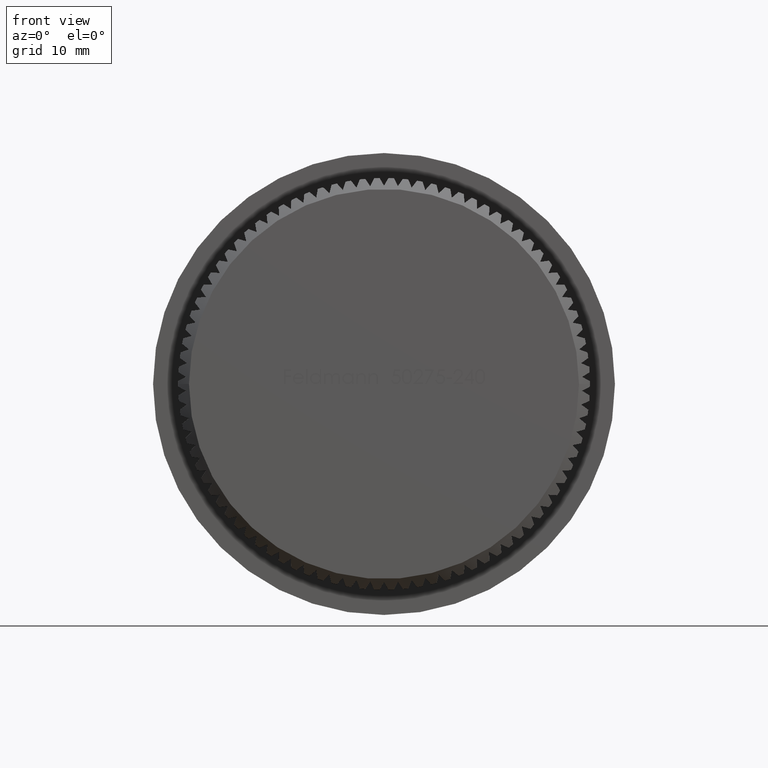
[diagram: clean part render]
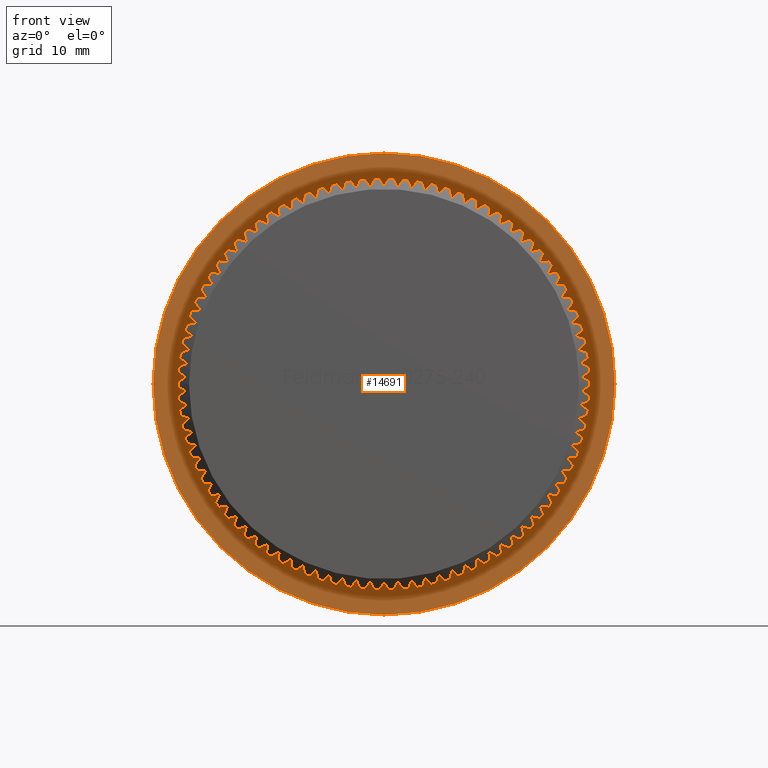
[diagram: same view with one face highlighted and labeled with its STEP entity id]
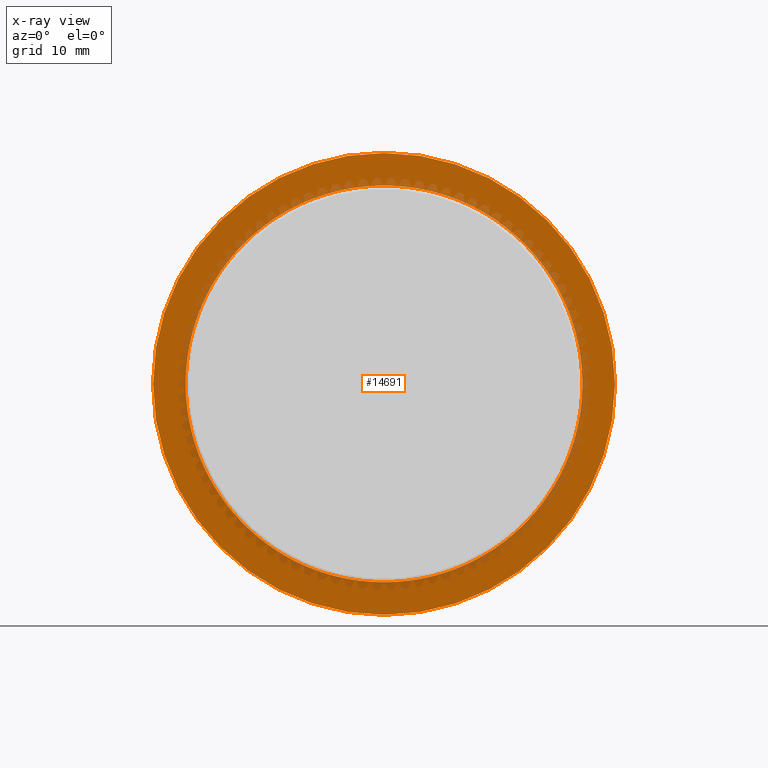
[diagram: x-ray of the same camera — body ghosted, the highlighted face saturated]
A machine part, front view. The second image highlights one B-rep face of the part: STEP entity #14691.
The next image is the same camera in x-ray: the body ghosted, the highlighted face saturated — about 15% of this face is hidden behind the body in this view.
In plain terms, the highlighted planar face has unit normal (0, -1, -0).
Its self-contained STEP definition (entity closure, byte-faithful):
#45 = CARTESIAN_POINT ( 'NONE',  ( -1.269567822143082800, 9.000000000000001800, 18.15566571472880500 ) ) ;
#156 = ORIENTED_EDGE ( 'NONE', *, *, #9903, .F. ) ;
#163 = DIRECTION ( 'NONE',  ( 1.000000000000000000, 0.0000000000000000000, 0.0000000000000000000 ) ) ;
#179 = DIRECTION ( 'NONE',  ( 1.000000000000000000, 0.0000000000000000000, 0.0000000000000000000 ) ) ;
#192 = CARTESIAN_POINT ( 'NONE',  ( -13.52523582368851700, 9.000000000000001800, -12.17817703573128800 ) ) ;
#196 = CARTESIAN_POINT ( 'NONE',  ( -15.08848382050171100, 9.000000000000001800, -10.17731084316766400 ) ) ;
#215 = CARTESIAN_POINT ( 'NONE',  ( 1.269567822142828800, 9.000000000000001800, 18.15566571472882300 ) ) ;
#231 = CARTESIAN_POINT ( 'NONE',  ( -3.424513085742287700E-028, 9.000000000000001800, 0.0000000000000000000 ) ) ;
#255 = DIRECTION ( 'NONE',  ( 1.000000000000000000, 0.0000000000000000000, 0.0000000000000000000 ) ) ;
#259 = CARTESIAN_POINT ( 'NONE',  ( -16.87474615311550600, 9.000000000000001800, -6.817840000169670000 ) ) ;
#313 = EDGE_CURVE ( 'NONE', #16701, #11237, #2625, .T. ) ;
#324 = VERTEX_POINT ( 'NONE', #20863 ) ;
#337 = CARTESIAN_POINT ( 'NONE',  ( -3.424513085742287700E-028, 9.000000000000001800, 0.0000000000000000000 ) ) ;
#376 = AXIS2_PLACEMENT_3D ( 'NONE', #15839, #6819, #22894 ) ;
#417 = DIRECTION ( 'NONE',  ( 1.000000000000000000, 0.0000000000000000000, 0.0000000000000000000 ) ) ;
#442 = CARTESIAN_POINT ( 'NONE',  ( -3.424513085742287700E-028, 9.000000000000001800, 0.0000000000000000000 ) ) ;
#464 = DIRECTION ( 'NONE',  ( 1.000000000000000000, 0.0000000000000000000, 0.0000000000000000000 ) ) ;
#486 = CIRCLE ( 'NONE', #22486, 18.19999999999999900 ) ;
#528 = DIRECTION ( 'NONE',  ( 1.000000000000000000, 0.0000000000000000000, 0.0000000000000000000 ) ) ;
#532 = ORIENTED_EDGE ( 'NONE', *, *, #7535, .F. ) ;
#589 = VERTEX_POINT ( 'NONE', #16295 ) ;
#637 = ORIENTED_EDGE ( 'NONE', *, *, #4649, .F. ) ;
#709 = CARTESIAN_POINT ( 'NONE',  ( 1.269567822143207800, 9.000000000000001800, -18.15566571472879400 ) ) ;
#711 = CIRCLE ( 'NONE', #17434, 18.19999999999999900 ) ;
#725 = AXIS2_PLACEMENT_3D ( 'NONE', #21807, #5828, #5731 ) ;
#760 = CARTESIAN_POINT ( 'NONE',  ( 12.64278234235386700, 9.000000000000001800, -13.09198436616334700 ) ) ;
#780 = EDGE_CURVE ( 'NONE', #13543, #13969, #12811, .T. ) ;
#904 = DIRECTION ( 'NONE',  ( 1.000000000000000000, 0.0000000000000000000, 0.0000000000000000000 ) ) ;
#930 = EDGE_CURVE ( 'NONE', #9993, #1234, #15346, .T. ) ;
#991 = DIRECTION ( 'NONE',  ( 1.000000000000000000, 3.805014539713652200E-029, 0.0000000000000000000 ) ) ;
#1025 = EDGE_CURVE ( 'NONE', #19186, #11898, #20155, .T. ) ;
#1042 = CIRCLE ( 'NONE', #11938, 18.19999999999999900 ) ;
#1051 = DIRECTION ( 'NONE',  ( 1.000000000000000000, 0.0000000000000000000, 0.0000000000000000000 ) ) ;
#1063 = AXIS2_PLACEMENT_3D ( 'NONE', #1178, #10082, #17444 ) ;
#1073 = ORIENTED_EDGE ( 'NONE', *, *, #780, .F. ) ;
#1081 = DIRECTION ( 'NONE',  ( 1.000000000000000000, 0.0000000000000000000, 0.0000000000000000000 ) ) ;
#1136 = DIRECTION ( 'NONE',  ( 1.000000000000000000, 0.0000000000000000000, 0.0000000000000000000 ) ) ;
#1137 = DIRECTION ( 'NONE',  ( 1.000000000000000000, 0.0000000000000000000, 0.0000000000000000000 ) ) ;
#1178 = CARTESIAN_POINT ( 'NONE',  ( -3.424513085742287700E-028, 9.000000000000001800, 0.0000000000000000000 ) ) ;
#1228 = CARTESIAN_POINT ( 'NONE',  ( 13.52523582368843300, 9.000000000000001800, 12.17817703573138400 ) ) ;
#1234 = VERTEX_POINT ( 'NONE', #14421 ) ;
#1324 = DIRECTION ( 'NONE',  ( 1.000000000000000000, 0.0000000000000000000, 0.0000000000000000000 ) ) ;
#1405 = CARTESIAN_POINT ( 'NONE',  ( -3.424513085742287700E-028, 9.000000000000001800, 0.0000000000000000000 ) ) ;
#1421 = AXIS2_PLACEMENT_3D ( 'NONE', #2638, #9983, #15302 ) ;
#1424 = DIRECTION ( 'NONE',  ( 1.000000000000000000, 0.0000000000000000000, 0.0000000000000000000 ) ) ;
#1483 = ORIENTED_EDGE ( 'NONE', *, *, #6343, .F. ) ;
#1497 = AXIS2_PLACEMENT_3D ( 'NONE', #19821, #3326, #9006 ) ;
#1502 = CARTESIAN_POINT ( 'NONE',  ( -3.424513085742287700E-028, 9.000000000000001800, 0.0000000000000000000 ) ) ;
#1556 = CARTESIAN_POINT ( 'NONE',  ( -7.402606903979466000, 9.000000000000001800, -16.62652732909538500 ) ) ;
#1581 = ORIENTED_EDGE ( 'NONE', *, *, #22277, .F. ) ;
#1659 = AXIS2_PLACEMENT_3D ( 'NONE', #11865, #10031, #2762 ) ;
#1703 = CARTESIAN_POINT ( 'NONE',  ( -3.424513085742287700E-028, 9.000000000000001800, 0.0000000000000000000 ) ) ;
#1800 = DIRECTION ( 'NONE',  ( 3.805014539713652200E-029, -1.000000000000000000, -0.0000000000000000000 ) ) ;
#1803 = AXIS2_PLACEMENT_3D ( 'NONE', #18317, #3863, #2128 ) ;
#1817 = DIRECTION ( 'NONE',  ( 1.000000000000000000, 0.0000000000000000000, 0.0000000000000000000 ) ) ;
#1818 = CARTESIAN_POINT ( 'NONE',  ( -3.424513085742287700E-028, 9.000000000000001800, 0.0000000000000000000 ) ) ;
#1848 = CARTESIAN_POINT ( 'NONE',  ( 16.87474615311545300, 9.000000000000001800, 6.817840000169792500 ) ) ;
#1898 = EDGE_CURVE ( 'NONE', #3488, #14692, #22374, .T. ) ;
#1914 = DIRECTION ( 'NONE',  ( 3.805014539713652200E-029, -1.000000000000000000, -0.0000000000000000000 ) ) ;
#1951 = ORIENTED_EDGE ( 'NONE', *, *, #14870, .F. ) ;
#1983 = CARTESIAN_POINT ( 'NONE',  ( -3.424513085742287700E-028, 9.000000000000001800, 0.0000000000000000000 ) ) ;
#1986 = ORIENTED_EDGE ( 'NONE', *, *, #15391, .F. ) ;
#2028 = ORIENTED_EDGE ( 'NONE', *, *, #1898, .F. ) ;
#2036 = AXIS2_PLACEMENT_3D ( 'NONE', #2554, #20556, #9747 ) ;
#2047 = VERTEX_POINT ( 'NONE', #4451 ) ;
#2048 = DIRECTION ( 'NONE',  ( 1.000000000000000000, 0.0000000000000000000, 0.0000000000000000000 ) ) ;
#2128 = DIRECTION ( 'NONE',  ( 1.000000000000000000, 0.0000000000000000000, 0.0000000000000000000 ) ) ;
#2141 = EDGE_CURVE ( 'NONE', #11628, #589, #5450, .T. ) ;
#2180 = AXIS2_PLACEMENT_3D ( 'NONE', #2260, #11354, #20264 ) ;
#2242 = CIRCLE ( 'NONE', #22315, 18.19999999999999900 ) ;
#2248 = DIRECTION ( 'NONE',  ( 1.000000000000000000, 0.0000000000000000000, 0.0000000000000000000 ) ) ;
#2260 = CARTESIAN_POINT ( 'NONE',  ( -3.424513085742287700E-028, 9.000000000000001800, 0.0000000000000000000 ) ) ;
#2289 = CIRCLE ( 'NONE', #11344, 18.19999999999999900 ) ;
#2293 = CIRCLE ( 'NONE', #376, 18.19999999999999900 ) ;
#2320 = CIRCLE ( 'NONE', #14695, 18.19999999999999900 ) ;
#2396 = EDGE_CURVE ( 'NONE', #13776, #5429, #5150, .T. ) ;
#2406 = DIRECTION ( 'NONE',  ( 1.000000000000000000, 0.0000000000000000000, 0.0000000000000000000 ) ) ;
#2445 = CARTESIAN_POINT ( 'NONE',  ( 7.402606903979689800, 9.000000000000001800, -16.62652732909528200 ) ) ;
#2465 = ORIENTED_EDGE ( 'NONE', *, *, #12332, .F. ) ;
#2490 = DIRECTION ( 'NONE',  ( 3.805014539713652200E-029, -1.000000000000000000, -0.0000000000000000000 ) ) ;
#2492 = VERTEX_POINT ( 'NONE', #11249 ) ;
#2501 = EDGE_CURVE ( 'NONE', #10612, #17376, #2320, .T. ) ;
#2524 = CARTESIAN_POINT ( 'NONE',  ( -3.424513085742287700E-028, 9.000000000000001800, 0.0000000000000000000 ) ) ;
#2527 = CIRCLE ( 'NONE', #20484, 18.19999999999999900 ) ;
#2533 = CARTESIAN_POINT ( 'NONE',  ( 11.69873449629513300, 9.000000000000001800, -13.94200886476530200 ) ) ;
#2548 = CARTESIAN_POINT ( 'NONE',  ( -3.424513085742287700E-028, 9.000000000000001800, 0.0000000000000000000 ) ) ;
#2554 = CARTESIAN_POINT ( 'NONE',  ( -3.424513085742287700E-028, 9.000000000000001800, 0.0000000000000000000 ) ) ;
#2590 = DIRECTION ( 'NONE',  ( 1.000000000000000000, 0.0000000000000000000, 0.0000000000000000000 ) ) ;
#2625 = CIRCLE ( 'NONE', #11758, 18.19999999999999900 ) ;
#2638 = CARTESIAN_POINT ( 'NONE',  ( -3.424513085742287700E-028, 9.000000000000001800, 0.0000000000000000000 ) ) ;
#2650 = CARTESIAN_POINT ( 'NONE',  ( -3.424513085742287700E-028, 9.000000000000001800, 0.0000000000000000000 ) ) ;
#2673 = EDGE_CURVE ( 'NONE', #15484, #13485, #10239, .T. ) ;
#2674 = CARTESIAN_POINT ( 'NONE',  ( -3.424513085742287700E-028, 9.000000000000001800, 0.0000000000000000000 ) ) ;
#2701 = VERTEX_POINT ( 'NONE', #2533 ) ;
#2743 = DIRECTION ( 'NONE',  ( 1.000000000000000000, 0.0000000000000000000, 0.0000000000000000000 ) ) ;
#2762 = DIRECTION ( 'NONE',  ( 1.000000000000000000, 0.0000000000000000000, 0.0000000000000000000 ) ) ;
#2775 = CARTESIAN_POINT ( 'NONE',  ( -3.424513085742287700E-028, 9.000000000000001800, 0.0000000000000000000 ) ) ;
#2807 = DIRECTION ( 'NONE',  ( 3.805014539713652200E-029, -1.000000000000000000, -0.0000000000000000000 ) ) ;
#2817 = DIRECTION ( 'NONE',  ( 1.000000000000000000, 0.0000000000000000000, 0.0000000000000000000 ) ) ;
#2859 = CARTESIAN_POINT ( 'NONE',  ( 18.10029849570255700, 9.000000000000001800, 1.902418031471476000 ) ) ;
#2870 = VERTEX_POINT ( 'NONE', #10110 ) ;
#2893 = DIRECTION ( 'NONE',  ( 1.000000000000000000, 0.0000000000000000000, 0.0000000000000000000 ) ) ;
#2903 = VERTEX_POINT ( 'NONE', #21471 ) ;
#2939 = CARTESIAN_POINT ( 'NONE',  ( -1.734723475976807100E-015, 9.000000000000001800, -18.19999999999999900 ) ) ;
#2943 = ORIENTED_EDGE ( 'NONE', *, *, #17108, .F. ) ;
#3019 = DIRECTION ( 'NONE',  ( 3.805014539713652200E-029, -1.000000000000000000, -0.0000000000000000000 ) ) ;
#3020 = CIRCLE ( 'NONE', #3701, 18.19999999999999900 ) ;
#3036 = CIRCLE ( 'NONE', #725, 18.19999999999999900 ) ;
#3087 = CARTESIAN_POINT ( 'NONE',  ( -3.424513085742287700E-028, 9.000000000000001800, 0.0000000000000000000 ) ) ;
#3206 = EDGE_CURVE ( 'NONE', #5612, #20457, #11621, .T. ) ;
#3283 = DIRECTION ( 'NONE',  ( 3.805014539713652200E-029, -1.000000000000000000, -0.0000000000000000000 ) ) ;
#3326 = DIRECTION ( 'NONE',  ( 3.805014539713652200E-029, -1.000000000000000000, -0.0000000000000000000 ) ) ;
#3336 = CIRCLE ( 'NONE', #10088, 18.19999999999999900 ) ;
#3374 = CARTESIAN_POINT ( 'NONE',  ( -3.424513085742287700E-028, 9.000000000000001800, 0.0000000000000000000 ) ) ;
#3417 = EDGE_CURVE ( 'NONE', #2492, #15516, #23166, .T. ) ;
#3452 = EDGE_CURVE ( 'NONE', #19285, #13203, #15022, .T. ) ;
#3488 = VERTEX_POINT ( 'NONE', #10045 ) ;
#3526 = CARTESIAN_POINT ( 'NONE',  ( 1.734723475976807100E-015, 9.000000000000001800, 18.19999999999999900 ) ) ;
#3552 = EDGE_CURVE ( 'NONE', #589, #19058, #22037, .T. ) ;
#3564 = CIRCLE ( 'NONE', #12153, 18.19999999999999900 ) ;
#3578 = EDGE_CURVE ( 'NONE', #9667, #20056, #10768, .T. ) ;
#3642 = CARTESIAN_POINT ( 'NONE',  ( -3.424513085742287700E-028, 9.000000000000001800, 0.0000000000000000000 ) ) ;
#3696 = DIRECTION ( 'NONE',  ( 3.805014539713652200E-029, -1.000000000000000000, -0.0000000000000000000 ) ) ;
#3701 = AXIS2_PLACEMENT_3D ( 'NONE', #11206, #14156, #2048 ) ;
#3733 = AXIS2_PLACEMENT_3D ( 'NONE', #8201, #13516, #7892 ) ;
#3752 = CARTESIAN_POINT ( 'NONE',  ( -3.424513085742287700E-028, 9.000000000000001800, 0.0000000000000000000 ) ) ;
#3759 = EDGE_CURVE ( 'NONE', #17054, #324, #20084, .T. ) ;
#3812 = CIRCLE ( 'NONE', #15037, 18.19999999999999900 ) ;
#3817 = DIRECTION ( 'NONE',  ( 1.000000000000000000, 0.0000000000000000000, 0.0000000000000000000 ) ) ;
#3863 = DIRECTION ( 'NONE',  ( 3.805014539713652200E-029, -1.000000000000000000, -0.0000000000000000000 ) ) ;
#3865 = EDGE_CURVE ( 'NONE', #16280, #17966, #13023, .T. ) ;
#3926 = AXIS2_PLACEMENT_3D ( 'NONE', #2674, #15265, #11614 ) ;
#3956 = DIRECTION ( 'NONE',  ( 3.805014539713652200E-029, -1.000000000000000000, -0.0000000000000000000 ) ) ;
#4008 = CARTESIAN_POINT ( 'NONE',  ( -3.424513085742287700E-028, 9.000000000000001800, 0.0000000000000000000 ) ) ;
#4010 = CARTESIAN_POINT ( 'NONE',  ( -3.424513085742287700E-028, 9.000000000000001800, 0.0000000000000000000 ) ) ;
#4043 = DIRECTION ( 'NONE',  ( 1.000000000000000000, 0.0000000000000000000, 0.0000000000000000000 ) ) ;
#4058 = DIRECTION ( 'NONE',  ( 1.000000000000000000, 0.0000000000000000000, 0.0000000000000000000 ) ) ;
#4065 = VERTEX_POINT ( 'NONE', #16204 ) ;
#4066 = EDGE_CURVE ( 'NONE', #23176, #16280, #12179, .T. ) ;
#4099 = ORIENTED_EDGE ( 'NONE', *, *, #5117, .F. ) ;
#4118 = CARTESIAN_POINT ( 'NONE',  ( -3.424513085742287700E-028, 9.000000000000001800, 0.0000000000000000000 ) ) ;
#4120 = ORIENTED_EDGE ( 'NONE', *, *, #3417, .F. ) ;
#4138 = DIRECTION ( 'NONE',  ( 1.000000000000000000, 0.0000000000000000000, 0.0000000000000000000 ) ) ;
#4156 = CARTESIAN_POINT ( 'NONE',  ( -3.424513085742287700E-028, 9.000000000000001800, 0.0000000000000000000 ) ) ;
#4197 = DIRECTION ( 'NONE',  ( 3.805014539713652200E-029, -1.000000000000000000, -0.0000000000000000000 ) ) ;
#4204 = AXIS2_PLACEMENT_3D ( 'NONE', #22741, #11973, #21505 ) ;
#4294 = ORIENTED_EDGE ( 'NONE', *, *, #21352, .F. ) ;
#4372 = AXIS2_PLACEMENT_3D ( 'NONE', #5968, #16710, #5890 ) ;
#4437 = AXIS2_PLACEMENT_3D ( 'NONE', #16416, #1800, #5662 ) ;
#4451 = CARTESIAN_POINT ( 'NONE',  ( -18.18891305174754100, 9.000000000000001800, -0.6351708399855811000 ) ) ;
#4468 = DIRECTION ( 'NONE',  ( 3.805014539713652200E-029, -1.000000000000000000, -0.0000000000000000000 ) ) ;
#4554 = CARTESIAN_POINT ( 'NONE',  ( 18.19999999999999900, 9.000000000000001800, 0.0000000000000000000 ) ) ;
#4566 = ORIENTED_EDGE ( 'NONE', *, *, #11111, .F. ) ;
#4617 = CARTESIAN_POINT ( 'NONE',  ( -3.424513085742287700E-028, 9.000000000000001800, 0.0000000000000000000 ) ) ;
#4622 = AXIS2_PLACEMENT_3D ( 'NONE', #14713, #21780, #163 ) ;
#4624 = DIRECTION ( 'NONE',  ( 3.805014539713652200E-029, -1.000000000000000000, -0.0000000000000000000 ) ) ;
#4649 = EDGE_CURVE ( 'NONE', #7673, #9084, #19775, .T. ) ;
#4710 = CIRCLE ( 'NONE', #1803, 18.19999999999999900 ) ;
#4762 = VERTEX_POINT ( 'NONE', #6318 ) ;
#4764 = EDGE_CURVE ( 'NONE', #9230, #3488, #15826, .T. ) ;
#4800 = EDGE_CURVE ( 'NONE', #10941, #9230, #16398, .T. ) ;
#4834 = AXIS2_PLACEMENT_3D ( 'NONE', #22702, #6545, #19184 ) ;
#4876 = AXIS2_PLACEMENT_3D ( 'NONE', #8723, #21590, #16180 ) ;
#4958 = CARTESIAN_POINT ( 'NONE',  ( 17.65938221822309000, 9.000000000000001800, 4.402978499914133300 ) ) ;
#4959 = CARTESIAN_POINT ( 'NONE',  ( -3.424513085742287700E-028, 9.000000000000001800, 0.0000000000000000000 ) ) ;
#5003 = DIRECTION ( 'NONE',  ( 1.000000000000000000, 0.0000000000000000000, 0.0000000000000000000 ) ) ;
#5004 = DIRECTION ( 'NONE',  ( 1.000000000000000000, 0.0000000000000000000, 0.0000000000000000000 ) ) ;
#5053 = AXIS2_PLACEMENT_3D ( 'NONE', #13152, #20462, #15209 ) ;
#5080 = DIRECTION ( 'NONE',  ( 1.000000000000000000, 0.0000000000000000000, 0.0000000000000000000 ) ) ;
#5117 = EDGE_CURVE ( 'NONE', #4065, #22662, #9079, .T. ) ;
#5118 = EDGE_CURVE ( 'NONE', #7086, #15608, #20643, .T. ) ;
#5145 = CIRCLE ( 'NONE', #9294, 18.19999999999999900 ) ;
#5150 = CIRCLE ( 'NONE', #18738, 18.19999999999999900 ) ;
#5191 = CIRCLE ( 'NONE', #15434, 18.19999999999999900 ) ;
#5194 = DIRECTION ( 'NONE',  ( 3.805014539713652200E-029, -1.000000000000000000, -0.0000000000000000000 ) ) ;
#5241 = ORIENTED_EDGE ( 'NONE', *, *, #12767, .F. ) ;
#5295 = CARTESIAN_POINT ( 'NONE',  ( -3.424513085742287700E-028, 9.000000000000001800, 0.0000000000000000000 ) ) ;
#5307 = CIRCLE ( 'NONE', #13094, 18.19999999999999900 ) ;
#5316 = CARTESIAN_POINT ( 'NONE',  ( -18.10029849570258500, 9.000000000000001800, 1.902418031471238200 ) ) ;
#5328 = EDGE_CURVE ( 'NONE', #1234, #21814, #10925, .T. ) ;
#5342 = CIRCLE ( 'NONE', #15112, 18.19999999999999900 ) ;
#5389 = CARTESIAN_POINT ( 'NONE',  ( 5.016599875869515800, 9.000000000000001800, -17.49496286607736600 ) ) ;
#5402 = CARTESIAN_POINT ( 'NONE',  ( -3.424513085742287700E-028, 9.000000000000001800, 0.0000000000000000000 ) ) ;
#5416 = VERTEX_POINT ( 'NONE', #215 ) ;
#5429 = VERTEX_POINT ( 'NONE', #5655 ) ;
#5432 = DIRECTION ( 'NONE',  ( 3.805014539713652200E-029, -1.000000000000000000, -0.0000000000000000000 ) ) ;
#5450 = CIRCLE ( 'NONE', #4204, 18.19999999999999900 ) ;
#5480 = VERTEX_POINT ( 'NONE', #7392 ) ;
#5483 = EDGE_CURVE ( 'NONE', #22662, #13776, #3564, .T. ) ;
#5502 = VERTEX_POINT ( 'NONE', #2939 ) ;
#5511 = VERTEX_POINT ( 'NONE', #2859 ) ;
#5527 = ORIENTED_EDGE ( 'NONE', *, *, #14899, .F. ) ;
#5531 = DIRECTION ( 'NONE',  ( 1.000000000000000000, 0.0000000000000000000, 0.0000000000000000000 ) ) ;
#5542 = EDGE_CURVE ( 'NONE', #13969, #13369, #15174, .T. ) ;
#5567 = EDGE_CURVE ( 'NONE', #11237, #8322, #5831, .T. ) ;
#5574 = DIRECTION ( 'NONE',  ( 3.805014539713652200E-029, -1.000000000000000000, -0.0000000000000000000 ) ) ;
#5601 = CARTESIAN_POINT ( 'NONE',  ( -3.424513085742287700E-028, 9.000000000000001800, 0.0000000000000000000 ) ) ;
#5612 = VERTEX_POINT ( 'NONE', #16465 ) ;
#5615 = CARTESIAN_POINT ( 'NONE',  ( 6.224766608526957500, 9.000000000000001800, 17.10240569830361300 ) ) ;
#5637 = CIRCLE ( 'NONE', #23141, 18.19999999999999900 ) ;
#5655 = CARTESIAN_POINT ( 'NONE',  ( -7.402606903979583200, 9.000000000000001800, 16.62652732909532800 ) ) ;
#5662 = DIRECTION ( 'NONE',  ( 1.000000000000000000, 0.0000000000000000000, 0.0000000000000000000 ) ) ;
#5672 = VERTEX_POINT ( 'NONE', #10998 ) ;
#5686 = DIRECTION ( 'NONE',  ( 3.805014539713652200E-029, -1.000000000000000000, -0.0000000000000000000 ) ) ;
#5731 = DIRECTION ( 'NONE',  ( 1.000000000000000000, 0.0000000000000000000, 0.0000000000000000000 ) ) ;
#5734 = ORIENTED_EDGE ( 'NONE', *, *, #21600, .F. ) ;
#5768 = ORIENTED_EDGE ( 'NONE', *, *, #22512, .F. ) ;
#5795 = CARTESIAN_POINT ( 'NONE',  ( -15.76166234887680600, 9.000000000000001800, 9.099999999999964100 ) ) ;
#5823 = ORIENTED_EDGE ( 'NONE', *, *, #5118, .F. ) ;
#5825 = DIRECTION ( 'NONE',  ( 1.000000000000000000, 0.0000000000000000000, 0.0000000000000000000 ) ) ;
#5828 = DIRECTION ( 'NONE',  ( 3.805014539713652200E-029, -1.000000000000000000, -0.0000000000000000000 ) ) ;
#5831 = CIRCLE ( 'NONE', #23140, 18.19999999999999900 ) ;
#5888 = DIRECTION ( 'NONE',  ( 1.000000000000000000, 0.0000000000000000000, 0.0000000000000000000 ) ) ;
#5890 = DIRECTION ( 'NONE',  ( 1.000000000000000000, 0.0000000000000000000, 0.0000000000000000000 ) ) ;
#5893 = DIRECTION ( 'NONE',  ( 1.000000000000000000, 0.0000000000000000000, 0.0000000000000000000 ) ) ;
#5918 = CARTESIAN_POINT ( 'NONE',  ( 10.69769159172313200, 9.000000000000001800, -14.72410929762395200 ) ) ;
#5937 = DIRECTION ( 'NONE',  ( 3.805014539713652200E-029, -1.000000000000000000, -0.0000000000000000000 ) ) ;
#5968 = CARTESIAN_POINT ( 'NONE',  ( -3.424513085742286300E-028, 8.999999999999998200, 0.0000000000000000000 ) ) ;
#5988 = DIRECTION ( 'NONE',  ( 3.805014539713652200E-029, -1.000000000000000000, -0.0000000000000000000 ) ) ;
#6020 = AXIS2_PLACEMENT_3D ( 'NONE', #20337, #5988, #16733 ) ;
#6070 = ORIENTED_EDGE ( 'NONE', *, *, #22714, .F. ) ;
#6101 = CARTESIAN_POINT ( 'NONE',  ( 14.34179571564244200, 9.000000000000001800, -11.20503885092685300 ) ) ;
#6116 = VERTEX_POINT ( 'NONE', #709 ) ;
#6134 = DIRECTION ( 'NONE',  ( 1.000000000000000000, 0.0000000000000000000, 0.0000000000000000000 ) ) ;
#6146 = CIRCLE ( 'NONE', #2180, 18.19999999999999900 ) ;
#6161 = CIRCLE ( 'NONE', #11011, 18.19999999999999900 ) ;
#6202 = CIRCLE ( 'NONE', #1063, 18.19999999999999900 ) ;
#6301 = VERTEX_POINT ( 'NONE', #13860 ) ;
#6318 = CARTESIAN_POINT ( 'NONE',  ( -17.65938221822312200, 9.000000000000001800, -4.402978499914017800 ) ) ;
#6343 = EDGE_CURVE ( 'NONE', #8879, #10081, #3812, .T. ) ;
#6347 = AXIS2_PLACEMENT_3D ( 'NONE', #3642, #1914, #16313 ) ;
#6395 = DIRECTION ( 'NONE',  ( 1.000000000000000000, 0.0000000000000000000, 0.0000000000000000000 ) ) ;
#6418 = EDGE_CURVE ( 'NONE', #15516, #12956, #711, .T. ) ;
#6462 = CARTESIAN_POINT ( 'NONE',  ( -3.424513085742287700E-028, 9.000000000000001800, 0.0000000000000000000 ) ) ;
#6515 = PLANE ( 'NONE',  #18432 ) ;
#6535 = CARTESIAN_POINT ( 'NONE',  ( 18.18891305174753700, 9.000000000000001800, 0.6351708399856990100 ) ) ;
#6542 = ORIENTED_EDGE ( 'NONE', *, *, #2396, .F. ) ;
#6544 = ORIENTED_EDGE ( 'NONE', *, *, #8926, .F. ) ;
#6545 = DIRECTION ( 'NONE',  ( 3.805014539713652200E-029, -1.000000000000000000, -0.0000000000000000000 ) ) ;
#6624 = EDGE_CURVE ( 'NONE', #13165, #6820, #13433, .T. ) ;
#6668 = CARTESIAN_POINT ( 'NONE',  ( -3.424513085742287700E-028, 9.000000000000001800, 0.0000000000000000000 ) ) ;
#6773 = DIRECTION ( 'NONE',  ( 3.805014539713652200E-029, -1.000000000000000000, -0.0000000000000000000 ) ) ;
#6802 = DIRECTION ( 'NONE',  ( 1.000000000000000000, 0.0000000000000000000, 0.0000000000000000000 ) ) ;
#6819 = DIRECTION ( 'NONE',  ( 3.805014539713652200E-029, -1.000000000000000000, -0.0000000000000000000 ) ) ;
#6820 = VERTEX_POINT ( 'NONE', #1228 ) ;
#6835 = CARTESIAN_POINT ( 'NONE',  ( -9.644530609044352300, 9.000000000000001800, 15.43447535004694200 ) ) ;
#6907 = CARTESIAN_POINT ( 'NONE',  ( -9.644530609044242200, 9.000000000000001800, -15.43447535004701100 ) ) ;
#6995 = CARTESIAN_POINT ( 'NONE',  ( -3.424513085742287700E-028, 9.000000000000001800, 0.0000000000000000000 ) ) ;
#6996 = ORIENTED_EDGE ( 'NONE', *, *, #14549, .F. ) ;
#7046 = CARTESIAN_POINT ( 'NONE',  ( -3.424513085742287700E-028, 9.000000000000001800, 0.0000000000000000000 ) ) ;
#7086 = VERTEX_POINT ( 'NONE', #192 ) ;
#7113 = CARTESIAN_POINT ( 'NONE',  ( 6.224766608527297700, 9.000000000000001800, -17.10240569830348900 ) ) ;
#7116 = CARTESIAN_POINT ( 'NONE',  ( -16.87474615311554900, 9.000000000000001800, 6.817840000169557200 ) ) ;
#7128 = ORIENTED_EDGE ( 'NONE', *, *, #3759, .F. ) ;
#7190 = DIRECTION ( 'NONE',  ( 3.805014539713652200E-029, -1.000000000000000000, -0.0000000000000000000 ) ) ;
#7207 = CARTESIAN_POINT ( 'NONE',  ( -3.424513085742287700E-028, 9.000000000000001800, 0.0000000000000000000 ) ) ;
#7231 = VERTEX_POINT ( 'NONE', #11538 ) ;
#7291 = DIRECTION ( 'NONE',  ( 3.805014539713652200E-029, -1.000000000000000000, -0.0000000000000000000 ) ) ;
#7296 = CARTESIAN_POINT ( 'NONE',  ( -3.424513085742287700E-028, 9.000000000000001800, 0.0000000000000000000 ) ) ;
#7304 = AXIS2_PLACEMENT_3D ( 'NONE', #14534, #21830, #16413 ) ;
#7331 = CARTESIAN_POINT ( 'NONE',  ( 8.544382442703334100, 9.000000000000001800, -16.06964619003240800 ) ) ;
#7382 = CARTESIAN_POINT ( 'NONE',  ( -3.424513085742287700E-028, 9.000000000000001800, 0.0000000000000000000 ) ) ;
#7392 = CARTESIAN_POINT ( 'NONE',  ( 15.76166234887668000, 9.000000000000001800, 9.100000000000186200 ) ) ;
#7400 = CIRCLE ( 'NONE', #12881, 18.19999999999999900 ) ;
#7437 = CARTESIAN_POINT ( 'NONE',  ( -3.424513085742287700E-028, 9.000000000000001800, 0.0000000000000000000 ) ) ;
#7535 = EDGE_CURVE ( 'NONE', #19058, #15597, #7995, .T. ) ;
#7552 = DIRECTION ( 'NONE',  ( 3.805014539713652200E-029, -1.000000000000000000, -0.0000000000000000000 ) ) ;
#7583 = CARTESIAN_POINT ( 'NONE',  ( 9.644530609044139200, 9.000000000000001800, 15.43447535004707500 ) ) ;
#7639 = DIRECTION ( 'NONE',  ( 3.805014539713652200E-029, -1.000000000000000000, -0.0000000000000000000 ) ) ;
#7673 = VERTEX_POINT ( 'NONE', #22305 ) ;
#7770 = DIRECTION ( 'NONE',  ( 3.805014539713652200E-029, -1.000000000000000000, -0.0000000000000000000 ) ) ;
#7892 = DIRECTION ( 'NONE',  ( 1.000000000000000000, 0.0000000000000000000, 0.0000000000000000000 ) ) ;
#7908 = CARTESIAN_POINT ( 'NONE',  ( -3.424513085742287700E-028, 9.000000000000001800, 0.0000000000000000000 ) ) ;
#7923 = CIRCLE ( 'NONE', #19735, 18.19999999999999900 ) ;
#7940 = VERTEX_POINT ( 'NONE', #196 ) ;
#7995 = CIRCLE ( 'NONE', #22847, 18.19999999999999900 ) ;
#8018 = CARTESIAN_POINT ( 'NONE',  ( -3.783992772883110000, 9.000000000000001800, -17.80228633335528700 ) ) ;
#8124 = DIRECTION ( 'NONE',  ( 3.805014539713652200E-029, -1.000000000000000000, -0.0000000000000000000 ) ) ;
#8136 = DIRECTION ( 'NONE',  ( 1.000000000000000000, 0.0000000000000000000, 0.0000000000000000000 ) ) ;
#8138 = AXIS2_PLACEMENT_3D ( 'NONE', #9370, #16502, #14700 ) ;
#8155 = CARTESIAN_POINT ( 'NONE',  ( -17.65938221822315100, 9.000000000000001800, 4.402978499913903200 ) ) ;
#8201 = CARTESIAN_POINT ( 'NONE',  ( -3.424513085742287700E-028, 9.000000000000001800, 0.0000000000000000000 ) ) ;
#8258 = AXIS2_PLACEMENT_3D ( 'NONE', #22299, #4468, #6134 ) ;
#8312 = DIRECTION ( 'NONE',  ( 3.805014539713652200E-029, -1.000000000000000000, -0.0000000000000000000 ) ) ;
#8322 = VERTEX_POINT ( 'NONE', #5918 ) ;
#8398 = VERTEX_POINT ( 'NONE', #12961 ) ;
#8413 = EDGE_CURVE ( 'NONE', #9195, #2047, #19008, .T. ) ;
#8439 = DIRECTION ( 'NONE',  ( 3.805014539713652200E-029, -1.000000000000000000, -0.0000000000000000000 ) ) ;
#8471 = CARTESIAN_POINT ( 'NONE',  ( 9.644530609044458900, 9.000000000000001800, -15.43447535004687600 ) ) ;
#8487 = CIRCLE ( 'NONE', #14173, 18.19999999999999900 ) ;
#8539 = ORIENTED_EDGE ( 'NONE', *, *, #5483, .F. ) ;
#8551 = CARTESIAN_POINT ( 'NONE',  ( 5.016599875869165000, 9.000000000000001800, 17.49496286607746900 ) ) ;
#8566 = EDGE_CURVE ( 'NONE', #5429, #13543, #20146, .T. ) ;
#8642 = AXIS2_PLACEMENT_3D ( 'NONE', #17552, #12350, #5080 ) ;
#8670 = CARTESIAN_POINT ( 'NONE',  ( -3.424513085742287700E-028, 9.000000000000001800, 0.0000000000000000000 ) ) ;
#8681 = ORIENTED_EDGE ( 'NONE', *, *, #9741, .F. ) ;
#8686 = EDGE_LOOP ( 'NONE', ( #8681, #16328, #13689, #18652, #5527, #20563, #4120, #2465, #21315, #20995, #6070, #637, #16977, #22712, #22023, #10236, #15061, #10419, #11696, #20375, #19622, #9995, #15351, #16114, #10005, #9306, #21138, #10779, #532, #19234, #12071, #5734, #20141, #20478, #10711, #14782, #18476, #1581, #22862, #18209, #15770, #4566, #12941, #1951, #14305, #17060, #9279, #13073, #12257, #9465, #2028, #9833, #20073, #5768, #13345, #1483, #13936, #20836, #5823, #14680, #11564, #156, #17528, #22425, #4294, #12379, #1986, #15902, #2943, #8703, #20775, #10454, #14052, #15437, #20578, #14302, #6544, #5241, #6996, #21869, #9089, #11293, #11550, #12898, #1073, #15417, #6542, #8539, #4099, #22388, #7128 ) ) ;
#8703 = ORIENTED_EDGE ( 'NONE', *, *, #8413, .F. ) ;
#8723 = CARTESIAN_POINT ( 'NONE',  ( -3.424513085742287700E-028, 9.000000000000001800, 0.0000000000000000000 ) ) ;
#8726 = DIRECTION ( 'NONE',  ( 3.805014539713652200E-029, -1.000000000000000000, -0.0000000000000000000 ) ) ;
#8727 = DIRECTION ( 'NONE',  ( 1.000000000000000000, 0.0000000000000000000, 0.0000000000000000000 ) ) ;
#8743 = AXIS2_PLACEMENT_3D ( 'NONE', #10868, #19856, #13016 ) ;
#8783 = CARTESIAN_POINT ( 'NONE',  ( 2.532950437473318900, 9.000000000000001800, -18.02287885109656800 ) ) ;
#8859 = VERTEX_POINT ( 'NONE', #16851 ) ;
#8879 = VERTEX_POINT ( 'NONE', #16773 ) ;
#8912 = DIRECTION ( 'NONE',  ( 1.000000000000000000, 0.0000000000000000000, 0.0000000000000000000 ) ) ;
#8926 = EDGE_CURVE ( 'NONE', #10125, #19186, #11658, .T. ) ;
#8929 = DIRECTION ( 'NONE',  ( 3.805014539713652200E-029, -1.000000000000000000, -0.0000000000000000000 ) ) ;
#8977 = CIRCLE ( 'NONE', #21884, 18.19999999999999900 ) ;
#9006 = DIRECTION ( 'NONE',  ( 1.000000000000000000, 0.0000000000000000000, 0.0000000000000000000 ) ) ;
#9074 = DIRECTION ( 'NONE',  ( 3.805014539713652200E-029, -1.000000000000000000, -0.0000000000000000000 ) ) ;
#9079 = CIRCLE ( 'NONE', #14425, 18.19999999999999900 ) ;
#9084 = VERTEX_POINT ( 'NONE', #14101 ) ;
#9089 = ORIENTED_EDGE ( 'NONE', *, *, #13851, .F. ) ;
#9151 = DIRECTION ( 'NONE',  ( 1.000000000000000000, 0.0000000000000000000, 0.0000000000000000000 ) ) ;
#9189 = DIRECTION ( 'NONE',  ( 1.000000000000000000, 0.0000000000000000000, 0.0000000000000000000 ) ) ;
#9195 = VERTEX_POINT ( 'NONE', #12666 ) ;
#9216 = CARTESIAN_POINT ( 'NONE',  ( 3.783992772882991000, 9.000000000000001800, 17.80228633335531200 ) ) ;
#9230 = VERTEX_POINT ( 'NONE', #12584 ) ;
#9245 = DIRECTION ( 'NONE',  ( 3.805014539713652200E-029, -1.000000000000000000, -0.0000000000000000000 ) ) ;
#9253 = VERTEX_POINT ( 'NONE', #14418 ) ;
#9279 = ORIENTED_EDGE ( 'NONE', *, *, #9573, .F. ) ;
#9294 = AXIS2_PLACEMENT_3D ( 'NONE', #22838, #12080, #2817 ) ;
#9306 = ORIENTED_EDGE ( 'NONE', *, *, #17288, .F. ) ;
#9309 = CARTESIAN_POINT ( 'NONE',  ( 15.08848382050185100, 9.000000000000001800, -10.17731084316745600 ) ) ;
#9338 = CIRCLE ( 'NONE', #16438, 18.19999999999999900 ) ;
#9370 = CARTESIAN_POINT ( 'NONE',  ( -3.424513085742287700E-028, 9.000000000000001800, 0.0000000000000000000 ) ) ;
#9400 = CARTESIAN_POINT ( 'NONE',  ( -3.424513085742287700E-028, 9.000000000000001800, 0.0000000000000000000 ) ) ;
#9449 = CARTESIAN_POINT ( 'NONE',  ( -3.424513085742287700E-028, 9.000000000000001800, 0.0000000000000000000 ) ) ;
#9461 = DIRECTION ( 'NONE',  ( 1.000000000000000000, 0.0000000000000000000, 0.0000000000000000000 ) ) ;
#9465 = ORIENTED_EDGE ( 'NONE', *, *, #23177, .F. ) ;
#9562 = DIRECTION ( 'NONE',  ( 1.000000000000000000, 0.0000000000000000000, 0.0000000000000000000 ) ) ;
#9573 = EDGE_CURVE ( 'NONE', #5502, #6116, #5145, .T. ) ;
#9611 = CARTESIAN_POINT ( 'NONE',  ( 21.20000000000000300, 8.999999999999998200, 0.0000000000000000000 ) ) ;
#9667 = VERTEX_POINT ( 'NONE', #16112 ) ;
#9741 = EDGE_CURVE ( 'NONE', #15854, #17054, #13924, .T. ) ;
#9747 = DIRECTION ( 'NONE',  ( 1.000000000000000000, 0.0000000000000000000, 0.0000000000000000000 ) ) ;
#9773 = VERTEX_POINT ( 'NONE', #9216 ) ;
#9833 = ORIENTED_EDGE ( 'NONE', *, *, #4764, .F. ) ;
#9846 = CIRCLE ( 'NONE', #20356, 18.19999999999999900 ) ;
#9903 = EDGE_CURVE ( 'NONE', #2870, #7940, #10510, .T. ) ;
#9983 = DIRECTION ( 'NONE',  ( 3.805014539713652200E-029, -1.000000000000000000, -0.0000000000000000000 ) ) ;
#9993 = VERTEX_POINT ( 'NONE', #8155 ) ;
#9995 = ORIENTED_EDGE ( 'NONE', *, *, #12709, .F. ) ;
#10005 = ORIENTED_EDGE ( 'NONE', *, *, #14937, .F. ) ;
#10031 = DIRECTION ( 'NONE',  ( 3.805014539713652200E-029, -1.000000000000000000, -0.0000000000000000000 ) ) ;
#10045 = CARTESIAN_POINT ( 'NONE',  ( -5.016599875869279600, 9.000000000000001800, -17.49496286607743700 ) ) ;
#10046 = EDGE_CURVE ( 'NONE', #15113, #15303, #2293, .T. ) ;
#10047 = EDGE_CURVE ( 'NONE', #13606, #22151, #7923, .T. ) ;
#10081 = VERTEX_POINT ( 'NONE', #6907 ) ;
#10082 = DIRECTION ( 'NONE',  ( 3.805014539713652200E-029, -1.000000000000000000, -0.0000000000000000000 ) ) ;
#10088 = AXIS2_PLACEMENT_3D ( 'NONE', #21593, #8726, #23316 ) ;
#10110 = CARTESIAN_POINT ( 'NONE',  ( -15.76166234887674200, 9.000000000000001800, -9.100000000000068900 ) ) ;
#10124 = DIRECTION ( 'NONE',  ( 3.805014539713652200E-029, -1.000000000000000000, -0.0000000000000000000 ) ) ;
#10125 = VERTEX_POINT ( 'NONE', #5795 ) ;
#10166 = CARTESIAN_POINT ( 'NONE',  ( -14.34179571564228600, 9.000000000000001800, -11.20503885092705000 ) ) ;
#10236 = ORIENTED_EDGE ( 'NONE', *, *, #19224, .F. ) ;
#10237 = EDGE_CURVE ( 'NONE', #22292, #5511, #19245, .T. ) ;
#10239 = CIRCLE ( 'NONE', #1659, 18.19999999999999900 ) ;
#10263 = DIRECTION ( 'NONE',  ( 1.000000000000000000, 0.0000000000000000000, 0.0000000000000000000 ) ) ;
#10419 = ORIENTED_EDGE ( 'NONE', *, *, #3452, .F. ) ;
#10453 = CARTESIAN_POINT ( 'NONE',  ( -3.424513085742287700E-028, 9.000000000000001800, 0.0000000000000000000 ) ) ;
#10454 = ORIENTED_EDGE ( 'NONE', *, *, #5328, .F. ) ;
#10510 = CIRCLE ( 'NONE', #2036, 18.19999999999999900 ) ;
#10612 = VERTEX_POINT ( 'NONE', #259 ) ;
#10623 = AXIS2_PLACEMENT_3D ( 'NONE', #4959, #12763, #11014 ) ;
#10652 = AXIS2_PLACEMENT_3D ( 'NONE', #11288, #20273, #9461 ) ;
#10659 = CARTESIAN_POINT ( 'NONE',  ( -3.424513085742287700E-028, 9.000000000000001800, 0.0000000000000000000 ) ) ;
#10711 = ORIENTED_EDGE ( 'NONE', *, *, #14587, .F. ) ;
#10745 = CARTESIAN_POINT ( 'NONE',  ( -8.544382442703229300, 9.000000000000001800, 16.06964619003246100 ) ) ;
#10762 = AXIS2_PLACEMENT_3D ( 'NONE', #22483, #17227, #6395 ) ;
#10767 = DIRECTION ( 'NONE',  ( 1.000000000000000000, 0.0000000000000000000, 0.0000000000000000000 ) ) ;
#10768 = CIRCLE ( 'NONE', #21007, 18.19999999999999900 ) ;
#10771 = DIRECTION ( 'NONE',  ( 3.805014539713652200E-029, -1.000000000000000000, -0.0000000000000000000 ) ) ;
#10779 = ORIENTED_EDGE ( 'NONE', *, *, #19851, .F. ) ;
#10787 = EDGE_CURVE ( 'NONE', #10980, #13165, #8487, .T. ) ;
#10823 = CARTESIAN_POINT ( 'NONE',  ( -3.424513085742287700E-028, 9.000000000000001800, 0.0000000000000000000 ) ) ;
#10868 = CARTESIAN_POINT ( 'NONE',  ( -3.424513085742287700E-028, 9.000000000000001800, 0.0000000000000000000 ) ) ;
#10925 = CIRCLE ( 'NONE', #12435, 18.19999999999999900 ) ;
#10941 = VERTEX_POINT ( 'NONE', #1556 ) ;
#10980 = VERTEX_POINT ( 'NONE', #18213 ) ;
#10982 = AXIS2_PLACEMENT_3D ( 'NONE', #1703, #5194, #17980 ) ;
#10998 = CARTESIAN_POINT ( 'NONE',  ( -13.52523582368859700, 9.000000000000001800, 12.17817703573119400 ) ) ;
#11011 = AXIS2_PLACEMENT_3D ( 'NONE', #337, #5937, #417 ) ;
#11014 = DIRECTION ( 'NONE',  ( 1.000000000000000000, 0.0000000000000000000, 0.0000000000000000000 ) ) ;
#11067 = DIRECTION ( 'NONE',  ( 3.805014539713652200E-029, -1.000000000000000000, -0.0000000000000000000 ) ) ;
#11083 = CARTESIAN_POINT ( 'NONE',  ( 14.34179571564220800, 9.000000000000001800, 11.20503885092715300 ) ) ;
#11111 = EDGE_CURVE ( 'NONE', #13485, #12405, #9338, .T. ) ;
#11206 = CARTESIAN_POINT ( 'NONE',  ( -3.424513085742287700E-028, 9.000000000000001800, 0.0000000000000000000 ) ) ;
#11216 = CIRCLE ( 'NONE', #10982, 18.19999999999999900 ) ;
#11237 = VERTEX_POINT ( 'NONE', #8471 ) ;
#11249 = CARTESIAN_POINT ( 'NONE',  ( 7.402606903979359400, 9.000000000000001800, 16.62652732909543100 ) ) ;
#11256 = CIRCLE ( 'NONE', #17232, 18.19999999999999900 ) ;
#11257 = CARTESIAN_POINT ( 'NONE',  ( -12.64278234235377400, 9.000000000000001800, 13.09198436616343200 ) ) ;
#11288 = CARTESIAN_POINT ( 'NONE',  ( -3.424513085742287700E-028, 9.000000000000001800, 0.0000000000000000000 ) ) ;
#11293 = ORIENTED_EDGE ( 'NONE', *, *, #3206, .F. ) ;
#11344 = AXIS2_PLACEMENT_3D ( 'NONE', #4617, #18674, #21979 ) ;
#11354 = DIRECTION ( 'NONE',  ( 3.805014539713652200E-029, -1.000000000000000000, -0.0000000000000000000 ) ) ;
#11538 = CARTESIAN_POINT ( 'NONE',  ( 18.18891305174754800, 9.000000000000001800, -0.6351708399853347500 ) ) ;
#11550 = ORIENTED_EDGE ( 'NONE', *, *, #21948, .F. ) ;
#11564 = ORIENTED_EDGE ( 'NONE', *, *, #12121, .F. ) ;
#11585 = EDGE_CURVE ( 'NONE', #12926, #9253, #22841, .T. ) ;
#11591 = CARTESIAN_POINT ( 'NONE',  ( -3.424513085742287700E-028, 9.000000000000001800, 0.0000000000000000000 ) ) ;
#11607 = CARTESIAN_POINT ( 'NONE',  ( -3.424513085742287700E-028, 9.000000000000001800, 0.0000000000000000000 ) ) ;
#11614 = DIRECTION ( 'NONE',  ( 1.000000000000000000, 0.0000000000000000000, 0.0000000000000000000 ) ) ;
#11621 = CIRCLE ( 'NONE', #12116, 18.19999999999999900 ) ;
#11623 = AXIS2_PLACEMENT_3D ( 'NONE', #21094, #3019, #5003 ) ;
#11628 = VERTEX_POINT ( 'NONE', #19030 ) ;
#11645 = DIRECTION ( 'NONE',  ( 1.000000000000000000, 0.0000000000000000000, 0.0000000000000000000 ) ) ;
#11658 = CIRCLE ( 'NONE', #5053, 18.19999999999999900 ) ;
#11663 = DIRECTION ( 'NONE',  ( 3.805014539713652200E-029, -1.000000000000000000, -0.0000000000000000000 ) ) ;
#11696 = ORIENTED_EDGE ( 'NONE', *, *, #11929, .F. ) ;
#11710 = CARTESIAN_POINT ( 'NONE',  ( 13.52523582368868200, 9.000000000000001800, -12.17817703573110700 ) ) ;
#11758 = AXIS2_PLACEMENT_3D ( 'NONE', #22207, #13238, #2406 ) ;
#11765 = DIRECTION ( 'NONE',  ( 1.000000000000000000, 0.0000000000000000000, 0.0000000000000000000 ) ) ;
#11809 = CIRCLE ( 'NONE', #6020, 18.19999999999999900 ) ;
#11854 = CARTESIAN_POINT ( 'NONE',  ( -10.69769159172303000, 9.000000000000001800, 14.72410929762403200 ) ) ;
#11865 = CARTESIAN_POINT ( 'NONE',  ( -3.424513085742287700E-028, 9.000000000000001800, 0.0000000000000000000 ) ) ;
#11898 = VERTEX_POINT ( 'NONE', #7116 ) ;
#11929 = EDGE_CURVE ( 'NONE', #12618, #19285, #2527, .T. ) ;
#11938 = AXIS2_PLACEMENT_3D ( 'NONE', #15983, #17558, #12358 ) ;
#11956 = CARTESIAN_POINT ( 'NONE',  ( -3.424513085742287700E-028, 9.000000000000001800, 0.0000000000000000000 ) ) ;
#11967 = AXIS2_PLACEMENT_3D ( 'NONE', #1502, #17762, #21377 ) ;
#11973 = DIRECTION ( 'NONE',  ( 3.805014539713652200E-029, -1.000000000000000000, -0.0000000000000000000 ) ) ;
#12071 = ORIENTED_EDGE ( 'NONE', *, *, #2141, .F. ) ;
#12080 = DIRECTION ( 'NONE',  ( 3.805014539713652200E-029, -1.000000000000000000, -0.0000000000000000000 ) ) ;
#12116 = AXIS2_PLACEMENT_3D ( 'NONE', #3752, #5432, #17823 ) ;
#12121 = EDGE_CURVE ( 'NONE', #7940, #15656, #14989, .T. ) ;
#12123 = CARTESIAN_POINT ( 'NONE',  ( -3.424513085742287700E-028, 9.000000000000001800, 0.0000000000000000000 ) ) ;
#12153 = AXIS2_PLACEMENT_3D ( 'NONE', #13541, #21172, #1136 ) ;
#12168 = DIRECTION ( 'NONE',  ( 1.000000000000000000, 0.0000000000000000000, 0.0000000000000000000 ) ) ;
#12179 = CIRCLE ( 'NONE', #17402, 18.19999999999999900 ) ;
#12257 = ORIENTED_EDGE ( 'NONE', *, *, #15103, .F. ) ;
#12330 = VERTEX_POINT ( 'NONE', #19631 ) ;
#12332 = EDGE_CURVE ( 'NONE', #17966, #2492, #2242, .T. ) ;
#12350 = DIRECTION ( 'NONE',  ( 3.805014539713652200E-029, -1.000000000000000000, -0.0000000000000000000 ) ) ;
#12358 = DIRECTION ( 'NONE',  ( 1.000000000000000000, 0.0000000000000000000, 0.0000000000000000000 ) ) ;
#12359 = AXIS2_PLACEMENT_3D ( 'NONE', #13926, #8124, #13677 ) ;
#12372 = CIRCLE ( 'NONE', #19196, 18.19999999999999900 ) ;
#12379 = ORIENTED_EDGE ( 'NONE', *, *, #19140, .F. ) ;
#12391 = EDGE_CURVE ( 'NONE', #20378, #13606, #20028, .T. ) ;
#12405 = VERTEX_POINT ( 'NONE', #2445 ) ;
#12435 = AXIS2_PLACEMENT_3D ( 'NONE', #1405, #3283, #8727 ) ;
#12507 = EDGE_LOOP ( 'NONE', ( #18663, #17371 ) ) ;
#12513 = AXIS2_PLACEMENT_3D ( 'NONE', #13356, #16910, #2743 ) ;
#12584 = CARTESIAN_POINT ( 'NONE',  ( -6.224766608527070300, 9.000000000000001800, -17.10240569830357100 ) ) ;
#12618 = VERTEX_POINT ( 'NONE', #16049 ) ;
#12666 = CARTESIAN_POINT ( 'NONE',  ( -18.18891305174754800, 9.000000000000001800, 0.6351708399854544300 ) ) ;
#12709 = EDGE_CURVE ( 'NONE', #5511, #19372, #9846, .T. ) ;
#12763 = DIRECTION ( 'NONE',  ( 3.805014539713652200E-029, -1.000000000000000000, -0.0000000000000000000 ) ) ;
#12767 = EDGE_CURVE ( 'NONE', #17738, #10125, #13842, .T. ) ;
#12811 = CIRCLE ( 'NONE', #18427, 18.19999999999999900 ) ;
#12881 = AXIS2_PLACEMENT_3D ( 'NONE', #17266, #7770, #4138 ) ;
#12898 = ORIENTED_EDGE ( 'NONE', *, *, #5542, .F. ) ;
#12926 = VERTEX_POINT ( 'NONE', #8783 ) ;
#12941 = ORIENTED_EDGE ( 'NONE', *, *, #2673, .F. ) ;
#12945 = CIRCLE ( 'NONE', #18677, 18.19999999999999900 ) ;
#12956 = VERTEX_POINT ( 'NONE', #8551 ) ;
#12958 = AXIS2_PLACEMENT_3D ( 'NONE', #22396, #22542, #11765 ) ;
#12961 = CARTESIAN_POINT ( 'NONE',  ( -2.532950437473076900, 9.000000000000001800, -18.02287885109660000 ) ) ;
#13016 = DIRECTION ( 'NONE',  ( 1.000000000000000000, 0.0000000000000000000, 0.0000000000000000000 ) ) ;
#13017 = EDGE_CURVE ( 'NONE', #2701, #15113, #5342, .T. ) ;
#13023 = CIRCLE ( 'NONE', #4834, 18.19999999999999900 ) ;
#13063 = CARTESIAN_POINT ( 'NONE',  ( -3.424513085742287700E-028, 9.000000000000001800, 0.0000000000000000000 ) ) ;
#13066 = CARTESIAN_POINT ( 'NONE',  ( -3.424513085742287700E-028, 9.000000000000001800, 0.0000000000000000000 ) ) ;
#13073 = ORIENTED_EDGE ( 'NONE', *, *, #21254, .F. ) ;
#13094 = AXIS2_PLACEMENT_3D ( 'NONE', #11591, #20572, #16809 ) ;
#13152 = CARTESIAN_POINT ( 'NONE',  ( -3.424513085742287700E-028, 9.000000000000001800, 0.0000000000000000000 ) ) ;
#13165 = VERTEX_POINT ( 'NONE', #11083 ) ;
#13203 = VERTEX_POINT ( 'NONE', #21956 ) ;
#13211 = EDGE_CURVE ( 'NONE', #15680, #22292, #6161, .T. ) ;
#13230 = VERTEX_POINT ( 'NONE', #17144 ) ;
#13238 = DIRECTION ( 'NONE',  ( 3.805014539713652200E-029, -1.000000000000000000, -0.0000000000000000000 ) ) ;
#13345 = ORIENTED_EDGE ( 'NONE', *, *, #18562, .F. ) ;
#13356 = CARTESIAN_POINT ( 'NONE',  ( -3.424513085742287700E-028, 9.000000000000001800, 0.0000000000000000000 ) ) ;
#13358 = AXIS2_PLACEMENT_3D ( 'NONE', #4156, #22136, #5825 ) ;
#13369 = VERTEX_POINT ( 'NONE', #11854 ) ;
#13433 = CIRCLE ( 'NONE', #7304, 18.19999999999999900 ) ;
#13485 = VERTEX_POINT ( 'NONE', #7113 ) ;
#13516 = DIRECTION ( 'NONE',  ( 3.805014539713652200E-029, -1.000000000000000000, -0.0000000000000000000 ) ) ;
#13541 = CARTESIAN_POINT ( 'NONE',  ( -3.424513085742287700E-028, 9.000000000000001800, 0.0000000000000000000 ) ) ;
#13543 = VERTEX_POINT ( 'NONE', #10745 ) ;
#13600 = AXIS2_PLACEMENT_3D ( 'NONE', #9449, #22369, #528 ) ;
#13606 = VERTEX_POINT ( 'NONE', #9309 ) ;
#13650 = VERTEX_POINT ( 'NONE', #9611 ) ;
#13674 = DIRECTION ( 'NONE',  ( 1.000000000000000000, 0.0000000000000000000, 0.0000000000000000000 ) ) ;
#13677 = DIRECTION ( 'NONE',  ( 1.000000000000000000, 0.0000000000000000000, 0.0000000000000000000 ) ) ;
#13689 = ORIENTED_EDGE ( 'NONE', *, *, #16478, .F. ) ;
#13738 = EDGE_CURVE ( 'NONE', #19372, #15822, #11809, .T. ) ;
#13776 = VERTEX_POINT ( 'NONE', #15098 ) ;
#13842 = CIRCLE ( 'NONE', #4622, 18.19999999999999900 ) ;
#13851 = EDGE_CURVE ( 'NONE', #20457, #5672, #8977, .T. ) ;
#13860 = CARTESIAN_POINT ( 'NONE',  ( 2.532950437472945000, 9.000000000000001800, 18.02287885109661800 ) ) ;
#13863 = DIRECTION ( 'NONE',  ( 3.805014539713652200E-029, -1.000000000000000000, -0.0000000000000000000 ) ) ;
#13918 = EDGE_CURVE ( 'NONE', #5672, #20164, #14945, .T. ) ;
#13924 = CIRCLE ( 'NONE', #4437, 18.19999999999999900 ) ;
#13926 = CARTESIAN_POINT ( 'NONE',  ( -3.424513085742287700E-028, 9.000000000000001800, 0.0000000000000000000 ) ) ;
#13936 = ORIENTED_EDGE ( 'NONE', *, *, #14489, .F. ) ;
#13969 = VERTEX_POINT ( 'NONE', #6835 ) ;
#13972 = CARTESIAN_POINT ( 'NONE',  ( 18.10029849570259600, 9.000000000000001800, -1.902418031471115200 ) ) ;
#14002 = EDGE_CURVE ( 'NONE', #6116, #12926, #3336, .T. ) ;
#14052 = ORIENTED_EDGE ( 'NONE', *, *, #930, .F. ) ;
#14096 = CIRCLE ( 'NONE', #12958, 21.20000000000000300 ) ;
#14101 = CARTESIAN_POINT ( 'NONE',  ( 11.69873449629484700, 9.000000000000001800, 13.94200886476554000 ) ) ;
#14150 = DIRECTION ( 'NONE',  ( 1.000000000000000000, 0.0000000000000000000, 0.0000000000000000000 ) ) ;
#14156 = DIRECTION ( 'NONE',  ( 3.805014539713652200E-029, -1.000000000000000000, -0.0000000000000000000 ) ) ;
#14173 = AXIS2_PLACEMENT_3D ( 'NONE', #15459, #4624, #1081 ) ;
#14261 = DIRECTION ( 'NONE',  ( 1.000000000000000000, 0.0000000000000000000, 0.0000000000000000000 ) ) ;
#14302 = ORIENTED_EDGE ( 'NONE', *, *, #1025, .F. ) ;
#14305 = ORIENTED_EDGE ( 'NONE', *, *, #11585, .F. ) ;
#14418 = CARTESIAN_POINT ( 'NONE',  ( 3.783992772883349300, 9.000000000000001800, -17.80228633335523700 ) ) ;
#14421 = CARTESIAN_POINT ( 'NONE',  ( -17.92350110482220100, 9.000000000000001800, 3.160396833538080800 ) ) ;
#14425 = AXIS2_PLACEMENT_3D ( 'NONE', #21298, #6773, #19337 ) ;
#14435 = CARTESIAN_POINT ( 'NONE',  ( 17.92350110482215400, 9.000000000000001800, 3.160396833538316600 ) ) ;
#14489 = EDGE_CURVE ( 'NONE', #2903, #8879, #20803, .T. ) ;
#14534 = CARTESIAN_POINT ( 'NONE',  ( -3.424513085742287700E-028, 9.000000000000001800, 0.0000000000000000000 ) ) ;
#14549 = EDGE_CURVE ( 'NONE', #20164, #17738, #1042, .T. ) ;
#14587 = EDGE_CURVE ( 'NONE', #15303, #20378, #12372, .T. ) ;
#14680 = ORIENTED_EDGE ( 'NONE', *, *, #15029, .F. ) ;
#14691 = ADVANCED_FACE ( 'NONE', ( #19715, #17463 ), #6515, .T. ) ;
#14692 = VERTEX_POINT ( 'NONE', #8018 ) ;
#14695 = AXIS2_PLACEMENT_3D ( 'NONE', #4118, #4197, #4043 ) ;
#14700 = DIRECTION ( 'NONE',  ( 1.000000000000000000, 0.0000000000000000000, 0.0000000000000000000 ) ) ;
#14713 = CARTESIAN_POINT ( 'NONE',  ( -3.424513085742287700E-028, 9.000000000000001800, 0.0000000000000000000 ) ) ;
#14782 = ORIENTED_EDGE ( 'NONE', *, *, #10046, .F. ) ;
#14793 = DIRECTION ( 'NONE',  ( 3.805014539713652200E-029, -1.000000000000000000, -0.0000000000000000000 ) ) ;
#14854 = DIRECTION ( 'NONE',  ( 3.805014539713652200E-029, -1.000000000000000000, -0.0000000000000000000 ) ) ;
#14870 = EDGE_CURVE ( 'NONE', #9253, #15484, #11256, .T. ) ;
#14899 = EDGE_CURVE ( 'NONE', #12956, #9773, #22196, .T. ) ;
#14937 = EDGE_CURVE ( 'NONE', #7231, #15680, #16895, .T. ) ;
#14945 = CIRCLE ( 'NONE', #20972, 18.19999999999999900 ) ;
#14955 = DIRECTION ( 'NONE',  ( 1.000000000000000000, 0.0000000000000000000, 0.0000000000000000000 ) ) ;
#14989 = CIRCLE ( 'NONE', #8258, 18.19999999999999900 ) ;
#15003 = EDGE_CURVE ( 'NONE', #15608, #2903, #16868, .T. ) ;
#15022 = CIRCLE ( 'NONE', #16517, 18.19999999999999900 ) ;
#15029 = EDGE_CURVE ( 'NONE', #15656, #7086, #21411, .T. ) ;
#15037 = AXIS2_PLACEMENT_3D ( 'NONE', #3087, #15746, #6802 ) ;
#15040 = CIRCLE ( 'NONE', #17259, 18.19999999999999900 ) ;
#15061 = ORIENTED_EDGE ( 'NONE', *, *, #22415, .F. ) ;
#15075 = DIRECTION ( 'NONE',  ( 3.805014539713652200E-029, -1.000000000000000000, -0.0000000000000000000 ) ) ;
#15098 = CARTESIAN_POINT ( 'NONE',  ( -6.224766608527185800, 9.000000000000001800, 17.10240569830353200 ) ) ;
#15103 = EDGE_CURVE ( 'NONE', #8398, #13230, #3036, .T. ) ;
#15112 = AXIS2_PLACEMENT_3D ( 'NONE', #7296, #10771, #16080 ) ;
#15113 = VERTEX_POINT ( 'NONE', #760 ) ;
#15174 = CIRCLE ( 'NONE', #19529, 18.19999999999999900 ) ;
#15176 = AXIS2_PLACEMENT_3D ( 'NONE', #21982, #7552, #5893 ) ;
#15187 = CARTESIAN_POINT ( 'NONE',  ( 15.76166234887686800, 9.000000000000001800, -9.099999999999854000 ) ) ;
#15209 = DIRECTION ( 'NONE',  ( 1.000000000000000000, 0.0000000000000000000, 0.0000000000000000000 ) ) ;
#15210 = CARTESIAN_POINT ( 'NONE',  ( -15.08848382050178400, 9.000000000000001800, 10.17731084316756300 ) ) ;
#15265 = DIRECTION ( 'NONE',  ( 3.805014539713652200E-029, -1.000000000000000000, -0.0000000000000000000 ) ) ;
#15290 = CARTESIAN_POINT ( 'NONE',  ( -3.424513085742287700E-028, 9.000000000000001800, 0.0000000000000000000 ) ) ;
#15302 = DIRECTION ( 'NONE',  ( 1.000000000000000000, 0.0000000000000000000, 0.0000000000000000000 ) ) ;
#15303 = VERTEX_POINT ( 'NONE', #11710 ) ;
#15314 = DIRECTION ( 'NONE',  ( 1.000000000000000000, 0.0000000000000000000, 0.0000000000000000000 ) ) ;
#15346 = CIRCLE ( 'NONE', #17997, 18.19999999999999900 ) ;
#15351 = ORIENTED_EDGE ( 'NONE', *, *, #10237, .F. ) ;
#15390 = EDGE_CURVE ( 'NONE', #324, #4065, #486, .T. ) ;
#15391 = EDGE_CURVE ( 'NONE', #16929, #4762, #19995, .T. ) ;
#15417 = ORIENTED_EDGE ( 'NONE', *, *, #8566, .F. ) ;
#15434 = AXIS2_PLACEMENT_3D ( 'NONE', #6462, #19090, #10263 ) ;
#15437 = ORIENTED_EDGE ( 'NONE', *, *, #17301, .F. ) ;
#15455 = CARTESIAN_POINT ( 'NONE',  ( -16.35805164264480300, 9.000000000000001800, -7.978354871561283100 ) ) ;
#15459 = CARTESIAN_POINT ( 'NONE',  ( -3.424513085742287700E-028, 9.000000000000001800, 0.0000000000000000000 ) ) ;
#15484 = VERTEX_POINT ( 'NONE', #5389 ) ;
#15499 = EDGE_CURVE ( 'NONE', #15822, #12618, #4710, .T. ) ;
#15516 = VERTEX_POINT ( 'NONE', #5615 ) ;
#15537 = EDGE_CURVE ( 'NONE', #11898, #19381, #16054, .T. ) ;
#15558 = DIRECTION ( 'NONE',  ( 3.805014539713652200E-029, -1.000000000000000000, -0.0000000000000000000 ) ) ;
#15596 = DIRECTION ( 'NONE',  ( 3.805014539713652200E-029, -1.000000000000000000, -0.0000000000000000000 ) ) ;
#15597 = VERTEX_POINT ( 'NONE', #18701 ) ;
#15608 = VERTEX_POINT ( 'NONE', #18852 ) ;
#15656 = VERTEX_POINT ( 'NONE', #10166 ) ;
#15680 = VERTEX_POINT ( 'NONE', #4554 ) ;
#15687 = CARTESIAN_POINT ( 'NONE',  ( -17.92350110482217600, 9.000000000000001800, -3.160396833538198900 ) ) ;
#15712 = AXIS2_PLACEMENT_3D ( 'NONE', #15290, #20394, #11645 ) ;
#15746 = DIRECTION ( 'NONE',  ( 3.805014539713652200E-029, -1.000000000000000000, -0.0000000000000000000 ) ) ;
#15770 = ORIENTED_EDGE ( 'NONE', *, *, #18101, .F. ) ;
#15786 = CARTESIAN_POINT ( 'NONE',  ( -16.35805164264486000, 9.000000000000001800, 7.978354871561172100 ) ) ;
#15822 = VERTEX_POINT ( 'NONE', #4958 ) ;
#15826 = CIRCLE ( 'NONE', #10762, 18.19999999999999900 ) ;
#15839 = CARTESIAN_POINT ( 'NONE',  ( -3.424513085742287700E-028, 9.000000000000001800, 0.0000000000000000000 ) ) ;
#15854 = VERTEX_POINT ( 'NONE', #3526 ) ;
#15902 = ORIENTED_EDGE ( 'NONE', *, *, #17956, .F. ) ;
#15983 = CARTESIAN_POINT ( 'NONE',  ( -3.424513085742287700E-028, 9.000000000000001800, 0.0000000000000000000 ) ) ;
#16029 = CIRCLE ( 'NONE', #12513, 18.19999999999999900 ) ;
#16049 = CARTESIAN_POINT ( 'NONE',  ( 17.30922859657173500, 9.000000000000001800, 5.624109297624226400 ) ) ;
#16054 = CIRCLE ( 'NONE', #22791, 18.19999999999999900 ) ;
#16080 = DIRECTION ( 'NONE',  ( 1.000000000000000000, 0.0000000000000000000, 0.0000000000000000000 ) ) ;
#16090 = DIRECTION ( 'NONE',  ( 3.805014539713652200E-029, -1.000000000000000000, -0.0000000000000000000 ) ) ;
#16112 = CARTESIAN_POINT ( 'NONE',  ( 17.92350110482222200, 9.000000000000001800, -3.160396833537959500 ) ) ;
#16114 = ORIENTED_EDGE ( 'NONE', *, *, #13211, .F. ) ;
#16143 = CIRCLE ( 'NONE', #15176, 18.19999999999999900 ) ;
#16180 = DIRECTION ( 'NONE',  ( 1.000000000000000000, 0.0000000000000000000, 0.0000000000000000000 ) ) ;
#16204 = CARTESIAN_POINT ( 'NONE',  ( -3.783992772883226800, 9.000000000000001800, 17.80228633335526200 ) ) ;
#16280 = VERTEX_POINT ( 'NONE', #7583 ) ;
#16295 = CARTESIAN_POINT ( 'NONE',  ( 16.87474615311559500, 9.000000000000001800, -6.817840000169440800 ) ) ;
#16313 = DIRECTION ( 'NONE',  ( 1.000000000000000000, 0.0000000000000000000, 0.0000000000000000000 ) ) ;
#16328 = ORIENTED_EDGE ( 'NONE', *, *, #20124, .F. ) ;
#16329 = CARTESIAN_POINT ( 'NONE',  ( -3.424513085742287700E-028, 9.000000000000001800, 0.0000000000000000000 ) ) ;
#16357 = DIRECTION ( 'NONE',  ( 3.805014539713652200E-029, -1.000000000000000000, -0.0000000000000000000 ) ) ;
#16398 = CIRCLE ( 'NONE', #20419, 18.19999999999999900 ) ;
#16413 = DIRECTION ( 'NONE',  ( 1.000000000000000000, 0.0000000000000000000, 0.0000000000000000000 ) ) ;
#16416 = CARTESIAN_POINT ( 'NONE',  ( -3.424513085742287700E-028, 9.000000000000001800, 0.0000000000000000000 ) ) ;
#16438 = AXIS2_PLACEMENT_3D ( 'NONE', #19057, #8312, #904 ) ;
#16465 = CARTESIAN_POINT ( 'NONE',  ( -11.69873449629503500, 9.000000000000001800, 13.94200886476538400 ) ) ;
#16478 = EDGE_CURVE ( 'NONE', #6301, #5416, #5191, .T. ) ;
#16502 = DIRECTION ( 'NONE',  ( 3.805014539713652200E-029, -1.000000000000000000, -0.0000000000000000000 ) ) ;
#16517 = AXIS2_PLACEMENT_3D ( 'NONE', #12123, #18964, #1051 ) ;
#16701 = VERTEX_POINT ( 'NONE', #7331 ) ;
#16710 = DIRECTION ( 'NONE',  ( 3.805014539713652200E-029, -1.000000000000000000, -0.0000000000000000000 ) ) ;
#16713 = AXIS2_PLACEMENT_3D ( 'NONE', #7437, #21721, #179 ) ;
#16733 = DIRECTION ( 'NONE',  ( 1.000000000000000000, 0.0000000000000000000, 0.0000000000000000000 ) ) ;
#16754 = CARTESIAN_POINT ( 'NONE',  ( -21.20000000000000300, 8.999999999999998200, 2.596251214192388800E-015 ) ) ;
#16773 = CARTESIAN_POINT ( 'NONE',  ( -10.69769159172293600, 9.000000000000001800, -14.72410929762410300 ) ) ;
#16809 = DIRECTION ( 'NONE',  ( 1.000000000000000000, 0.0000000000000000000, 0.0000000000000000000 ) ) ;
#16851 = CARTESIAN_POINT ( 'NONE',  ( -17.30922859657177400, 9.000000000000001800, -5.624109297624113600 ) ) ;
#16857 = AXIS2_PLACEMENT_3D ( 'NONE', #18693, #20654, #18770 ) ;
#16868 = CIRCLE ( 'NONE', #15712, 18.19999999999999900 ) ;
#16895 = CIRCLE ( 'NONE', #8743, 18.19999999999999900 ) ;
#16910 = DIRECTION ( 'NONE',  ( 3.805014539713652200E-029, -1.000000000000000000, -0.0000000000000000000 ) ) ;
#16924 = AXIS2_PLACEMENT_3D ( 'NONE', #2548, #15075, #5888 ) ;
#16929 = VERTEX_POINT ( 'NONE', #15687 ) ;
#16977 = ORIENTED_EDGE ( 'NONE', *, *, #18125, .F. ) ;
#17054 = VERTEX_POINT ( 'NONE', #45 ) ;
#17060 = ORIENTED_EDGE ( 'NONE', *, *, #14002, .F. ) ;
#17063 = CARTESIAN_POINT ( 'NONE',  ( 10.69769159172283500, 9.000000000000001800, 14.72410929762417600 ) ) ;
#17108 = EDGE_CURVE ( 'NONE', #2047, #12330, #18142, .T. ) ;
#17144 = CARTESIAN_POINT ( 'NONE',  ( -1.269567822142958900, 9.000000000000001800, -18.15566571472881200 ) ) ;
#17227 = DIRECTION ( 'NONE',  ( 3.805014539713652200E-029, -1.000000000000000000, -0.0000000000000000000 ) ) ;
#17232 = AXIS2_PLACEMENT_3D ( 'NONE', #6995, #16090, #4058 ) ;
#17259 = AXIS2_PLACEMENT_3D ( 'NONE', #7046, #9245, #255 ) ;
#17266 = CARTESIAN_POINT ( 'NONE',  ( -3.424513085742287700E-028, 9.000000000000001800, 0.0000000000000000000 ) ) ;
#17288 = EDGE_CURVE ( 'NONE', #20056, #7231, #7400, .T. ) ;
#17301 = EDGE_CURVE ( 'NONE', #19381, #9993, #2289, .T. ) ;
#17335 = EDGE_CURVE ( 'NONE', #23157, #13650, #23181, .T. ) ;
#17371 = ORIENTED_EDGE ( 'NONE', *, *, #17335, .T. ) ;
#17376 = VERTEX_POINT ( 'NONE', #15455 ) ;
#17402 = AXIS2_PLACEMENT_3D ( 'NONE', #10659, #7190, #8912 ) ;
#17404 = AXIS2_PLACEMENT_3D ( 'NONE', #3374, #21441, #14150 ) ;
#17434 = AXIS2_PLACEMENT_3D ( 'NONE', #22760, #2807, #2893 ) ;
#17444 = DIRECTION ( 'NONE',  ( 1.000000000000000000, 0.0000000000000000000, 0.0000000000000000000 ) ) ;
#17463 = FACE_BOUND ( 'NONE', #8686, .T. ) ;
#17483 = DIRECTION ( 'NONE',  ( 1.000000000000000000, 0.0000000000000000000, 0.0000000000000000000 ) ) ;
#17528 = ORIENTED_EDGE ( 'NONE', *, *, #19818, .F. ) ;
#17552 = CARTESIAN_POINT ( 'NONE',  ( -3.424513085742287700E-028, 9.000000000000001800, 0.0000000000000000000 ) ) ;
#17558 = DIRECTION ( 'NONE',  ( 3.805014539713652200E-029, -1.000000000000000000, -0.0000000000000000000 ) ) ;
#17631 = CARTESIAN_POINT ( 'NONE',  ( 8.544382442703014400, 9.000000000000001800, 16.06964619003257500 ) ) ;
#17698 = CARTESIAN_POINT ( 'NONE',  ( -3.424513085742287700E-028, 9.000000000000001800, 0.0000000000000000000 ) ) ;
#17738 = VERTEX_POINT ( 'NONE', #15210 ) ;
#17762 = DIRECTION ( 'NONE',  ( 3.805014539713652200E-029, -1.000000000000000000, -0.0000000000000000000 ) ) ;
#17823 = DIRECTION ( 'NONE',  ( 1.000000000000000000, 0.0000000000000000000, 0.0000000000000000000 ) ) ;
#17956 = EDGE_CURVE ( 'NONE', #12330, #16929, #18121, .T. ) ;
#17966 = VERTEX_POINT ( 'NONE', #17631 ) ;
#17979 = CARTESIAN_POINT ( 'NONE',  ( -14.34179571564236300, 9.000000000000001800, 11.20503885092695200 ) ) ;
#17980 = DIRECTION ( 'NONE',  ( 1.000000000000000000, 0.0000000000000000000, 0.0000000000000000000 ) ) ;
#17997 = AXIS2_PLACEMENT_3D ( 'NONE', #231, #14854, #18374 ) ;
#18075 = AXIS2_PLACEMENT_3D ( 'NONE', #13066, #3956, #20148 ) ;
#18101 = EDGE_CURVE ( 'NONE', #12405, #16701, #15040, .T. ) ;
#18121 = CIRCLE ( 'NONE', #8642, 18.19999999999999900 ) ;
#18125 = EDGE_CURVE ( 'NONE', #6820, #7673, #19810, .T. ) ;
#18142 = CIRCLE ( 'NONE', #17404, 18.19999999999999900 ) ;
#18154 = VERTEX_POINT ( 'NONE', #22081 ) ;
#18209 = ORIENTED_EDGE ( 'NONE', *, *, #313, .F. ) ;
#18213 = CARTESIAN_POINT ( 'NONE',  ( 15.08848382050163700, 9.000000000000001800, 10.17731084316777200 ) ) ;
#18237 = DIRECTION ( 'NONE',  ( 3.805014539713652200E-029, -1.000000000000000000, -0.0000000000000000000 ) ) ;
#18317 = CARTESIAN_POINT ( 'NONE',  ( -3.424513085742287700E-028, 9.000000000000001800, 0.0000000000000000000 ) ) ;
#18337 = CARTESIAN_POINT ( 'NONE',  ( -17.30922859657181300, 9.000000000000001800, 5.624109297623999000 ) ) ;
#18343 = CIRCLE ( 'NONE', #13358, 18.19999999999999900 ) ;
#18374 = DIRECTION ( 'NONE',  ( 1.000000000000000000, 0.0000000000000000000, 0.0000000000000000000 ) ) ;
#18427 = AXIS2_PLACEMENT_3D ( 'NONE', #8670, #19414, #1424 ) ;
#18432 = AXIS2_PLACEMENT_3D ( 'NONE', #22523, #11663, #991 ) ;
#18460 = AXIS2_PLACEMENT_3D ( 'NONE', #2524, #19027, #13674 ) ;
#18476 = ORIENTED_EDGE ( 'NONE', *, *, #13017, .F. ) ;
#18562 = EDGE_CURVE ( 'NONE', #10081, #18154, #16143, .T. ) ;
#18583 = CIRCLE ( 'NONE', #16713, 18.19999999999999900 ) ;
#18652 = ORIENTED_EDGE ( 'NONE', *, *, #20660, .F. ) ;
#18663 = ORIENTED_EDGE ( 'NONE', *, *, #22169, .T. ) ;
#18674 = DIRECTION ( 'NONE',  ( 3.805014539713652200E-029, -1.000000000000000000, -0.0000000000000000000 ) ) ;
#18677 = AXIS2_PLACEMENT_3D ( 'NONE', #11607, #22695, #2590 ) ;
#18693 = CARTESIAN_POINT ( 'NONE',  ( -3.424513085742287700E-028, 9.000000000000001800, 0.0000000000000000000 ) ) ;
#18701 = CARTESIAN_POINT ( 'NONE',  ( 17.65938221822317900, 9.000000000000001800, -4.402978499913783300 ) ) ;
#18738 = AXIS2_PLACEMENT_3D ( 'NONE', #7382, #19770, #9189 ) ;
#18770 = DIRECTION ( 'NONE',  ( 1.000000000000000000, 0.0000000000000000000, 0.0000000000000000000 ) ) ;
#18852 = CARTESIAN_POINT ( 'NONE',  ( -12.64278234235368700, 9.000000000000001800, -13.09198436616351600 ) ) ;
#18917 = CIRCLE ( 'NONE', #10623, 18.19999999999999900 ) ;
#18964 = DIRECTION ( 'NONE',  ( 3.805014539713652200E-029, -1.000000000000000000, -0.0000000000000000000 ) ) ;
#19008 = CIRCLE ( 'NONE', #10652, 18.19999999999999900 ) ;
#19027 = DIRECTION ( 'NONE',  ( 3.805014539713652200E-029, -1.000000000000000000, -0.0000000000000000000 ) ) ;
#19030 = CARTESIAN_POINT ( 'NONE',  ( 16.35805164264491700, 9.000000000000001800, -7.978354871561055700 ) ) ;
#19057 = CARTESIAN_POINT ( 'NONE',  ( -3.424513085742287700E-028, 9.000000000000001800, 0.0000000000000000000 ) ) ;
#19058 = VERTEX_POINT ( 'NONE', #22231 ) ;
#19090 = DIRECTION ( 'NONE',  ( 3.805014539713652200E-029, -1.000000000000000000, -0.0000000000000000000 ) ) ;
#19140 = EDGE_CURVE ( 'NONE', #4762, #8859, #6202, .T. ) ;
#19169 = CIRCLE ( 'NONE', #4876, 18.19999999999999900 ) ;
#19184 = DIRECTION ( 'NONE',  ( 1.000000000000000000, 0.0000000000000000000, 0.0000000000000000000 ) ) ;
#19186 = VERTEX_POINT ( 'NONE', #15786 ) ;
#19196 = AXIS2_PLACEMENT_3D ( 'NONE', #5601, #16357, #21849 ) ;
#19224 = EDGE_CURVE ( 'NONE', #5480, #10980, #18917, .T. ) ;
#19234 = ORIENTED_EDGE ( 'NONE', *, *, #3552, .F. ) ;
#19245 = CIRCLE ( 'NONE', #19427, 18.19999999999999900 ) ;
#19285 = VERTEX_POINT ( 'NONE', #1848 ) ;
#19337 = DIRECTION ( 'NONE',  ( 1.000000000000000000, 0.0000000000000000000, 0.0000000000000000000 ) ) ;
#19372 = VERTEX_POINT ( 'NONE', #14435 ) ;
#19381 = VERTEX_POINT ( 'NONE', #18337 ) ;
#19414 = DIRECTION ( 'NONE',  ( 3.805014539713652200E-029, -1.000000000000000000, -0.0000000000000000000 ) ) ;
#19427 = AXIS2_PLACEMENT_3D ( 'NONE', #7908, #22494, #8136 ) ;
#19469 = CIRCLE ( 'NONE', #18075, 18.19999999999999900 ) ;
#19529 = AXIS2_PLACEMENT_3D ( 'NONE', #11956, #15596, #5004 ) ;
#19620 = DIRECTION ( 'NONE',  ( 3.805014539713652200E-029, -1.000000000000000000, -0.0000000000000000000 ) ) ;
#19622 = ORIENTED_EDGE ( 'NONE', *, *, #13738, .F. ) ;
#19631 = CARTESIAN_POINT ( 'NONE',  ( -18.10029849570257100, 9.000000000000001800, -1.902418031471355500 ) ) ;
#19715 = FACE_OUTER_BOUND ( 'NONE', #12507, .T. ) ;
#19735 = AXIS2_PLACEMENT_3D ( 'NONE', #16329, #5574, #3817 ) ;
#19770 = DIRECTION ( 'NONE',  ( 3.805014539713652200E-029, -1.000000000000000000, -0.0000000000000000000 ) ) ;
#19775 = CIRCLE ( 'NONE', #18460, 18.19999999999999900 ) ;
#19810 = CIRCLE ( 'NONE', #20423, 18.19999999999999900 ) ;
#19818 = EDGE_CURVE ( 'NONE', #17376, #2870, #5637, .T. ) ;
#19821 = CARTESIAN_POINT ( 'NONE',  ( -3.424513085742287700E-028, 9.000000000000001800, 0.0000000000000000000 ) ) ;
#19851 = EDGE_CURVE ( 'NONE', #15597, #9667, #18343, .T. ) ;
#19856 = DIRECTION ( 'NONE',  ( 3.805014539713652200E-029, -1.000000000000000000, -0.0000000000000000000 ) ) ;
#19995 = CIRCLE ( 'NONE', #1497, 18.19999999999999900 ) ;
#20028 = CIRCLE ( 'NONE', #3733, 18.19999999999999900 ) ;
#20056 = VERTEX_POINT ( 'NONE', #13972 ) ;
#20073 = ORIENTED_EDGE ( 'NONE', *, *, #4800, .F. ) ;
#20084 = CIRCLE ( 'NONE', #3926, 18.19999999999999900 ) ;
#20124 = EDGE_CURVE ( 'NONE', #5416, #15854, #19169, .T. ) ;
#20141 = ORIENTED_EDGE ( 'NONE', *, *, #10047, .F. ) ;
#20144 = DIRECTION ( 'NONE',  ( 3.805014539713652200E-029, -1.000000000000000000, -0.0000000000000000000 ) ) ;
#20146 = CIRCLE ( 'NONE', #1421, 18.19999999999999900 ) ;
#20148 = DIRECTION ( 'NONE',  ( 1.000000000000000000, 0.0000000000000000000, 0.0000000000000000000 ) ) ;
#20155 = CIRCLE ( 'NONE', #13600, 18.19999999999999900 ) ;
#20164 = VERTEX_POINT ( 'NONE', #17979 ) ;
#20264 = DIRECTION ( 'NONE',  ( 1.000000000000000000, 0.0000000000000000000, 0.0000000000000000000 ) ) ;
#20273 = DIRECTION ( 'NONE',  ( 3.805014539713652200E-029, -1.000000000000000000, -0.0000000000000000000 ) ) ;
#20337 = CARTESIAN_POINT ( 'NONE',  ( -3.424513085742287700E-028, 9.000000000000001800, 0.0000000000000000000 ) ) ;
#20356 = AXIS2_PLACEMENT_3D ( 'NONE', #1818, #18237, #9151 ) ;
#20375 = ORIENTED_EDGE ( 'NONE', *, *, #15499, .F. ) ;
#20378 = VERTEX_POINT ( 'NONE', #6101 ) ;
#20394 = DIRECTION ( 'NONE',  ( 3.805014539713652200E-029, -1.000000000000000000, -0.0000000000000000000 ) ) ;
#20419 = AXIS2_PLACEMENT_3D ( 'NONE', #17698, #8439, #23023 ) ;
#20423 = AXIS2_PLACEMENT_3D ( 'NONE', #9400, #11067, #14955 ) ;
#20457 = VERTEX_POINT ( 'NONE', #11257 ) ;
#20462 = DIRECTION ( 'NONE',  ( 3.805014539713652200E-029, -1.000000000000000000, -0.0000000000000000000 ) ) ;
#20478 = ORIENTED_EDGE ( 'NONE', *, *, #12391, .F. ) ;
#20484 = AXIS2_PLACEMENT_3D ( 'NONE', #4010, #14793, #22073 ) ;
#20556 = DIRECTION ( 'NONE',  ( 3.805014539713652200E-029, -1.000000000000000000, -0.0000000000000000000 ) ) ;
#20563 = ORIENTED_EDGE ( 'NONE', *, *, #6418, .F. ) ;
#20572 = DIRECTION ( 'NONE',  ( 3.805014539713652200E-029, -1.000000000000000000, -0.0000000000000000000 ) ) ;
#20578 = ORIENTED_EDGE ( 'NONE', *, *, #15537, .F. ) ;
#20638 = AXIS2_PLACEMENT_3D ( 'NONE', #23090, #15558, #12168 ) ;
#20643 = CIRCLE ( 'NONE', #11967, 18.19999999999999900 ) ;
#20654 = DIRECTION ( 'NONE',  ( 3.805014539713652200E-029, -1.000000000000000000, -0.0000000000000000000 ) ) ;
#20660 = EDGE_CURVE ( 'NONE', #9773, #6301, #19469, .T. ) ;
#20775 = ORIENTED_EDGE ( 'NONE', *, *, #22164, .F. ) ;
#20803 = CIRCLE ( 'NONE', #11623, 18.19999999999999900 ) ;
#20836 = ORIENTED_EDGE ( 'NONE', *, *, #15003, .F. ) ;
#20863 = CARTESIAN_POINT ( 'NONE',  ( -2.532950437473198100, 9.000000000000001800, 18.02287885109657900 ) ) ;
#20972 = AXIS2_PLACEMENT_3D ( 'NONE', #6668, #21122, #1324 ) ;
#20995 = ORIENTED_EDGE ( 'NONE', *, *, #4066, .F. ) ;
#21007 = AXIS2_PLACEMENT_3D ( 'NONE', #5402, #7291, #10767 ) ;
#21094 = CARTESIAN_POINT ( 'NONE',  ( -3.424513085742287700E-028, 9.000000000000001800, 0.0000000000000000000 ) ) ;
#21122 = DIRECTION ( 'NONE',  ( 3.805014539713652200E-029, -1.000000000000000000, -0.0000000000000000000 ) ) ;
#21138 = ORIENTED_EDGE ( 'NONE', *, *, #3578, .F. ) ;
#21142 = CIRCLE ( 'NONE', #16857, 18.19999999999999900 ) ;
#21172 = DIRECTION ( 'NONE',  ( 3.805014539713652200E-029, -1.000000000000000000, -0.0000000000000000000 ) ) ;
#21254 = EDGE_CURVE ( 'NONE', #13230, #5502, #22810, .T. ) ;
#21298 = CARTESIAN_POINT ( 'NONE',  ( -3.424513085742287700E-028, 9.000000000000001800, 0.0000000000000000000 ) ) ;
#21315 = ORIENTED_EDGE ( 'NONE', *, *, #3865, .F. ) ;
#21352 = EDGE_CURVE ( 'NONE', #8859, #10612, #21142, .T. ) ;
#21377 = DIRECTION ( 'NONE',  ( 1.000000000000000000, 0.0000000000000000000, 0.0000000000000000000 ) ) ;
#21392 = CIRCLE ( 'NONE', #20638, 18.19999999999999900 ) ;
#21411 = CIRCLE ( 'NONE', #16924, 18.19999999999999900 ) ;
#21441 = DIRECTION ( 'NONE',  ( 3.805014539713652200E-029, -1.000000000000000000, -0.0000000000000000000 ) ) ;
#21471 = CARTESIAN_POINT ( 'NONE',  ( -11.69873449629494600, 9.000000000000001800, -13.94200886476545700 ) ) ;
#21505 = DIRECTION ( 'NONE',  ( 1.000000000000000000, 0.0000000000000000000, 0.0000000000000000000 ) ) ;
#21590 = DIRECTION ( 'NONE',  ( 3.805014539713652200E-029, -1.000000000000000000, -0.0000000000000000000 ) ) ;
#21593 = CARTESIAN_POINT ( 'NONE',  ( -3.424513085742287700E-028, 9.000000000000001800, 0.0000000000000000000 ) ) ;
#21600 = EDGE_CURVE ( 'NONE', #22151, #11628, #6146, .T. ) ;
#21608 = AXIS2_PLACEMENT_3D ( 'NONE', #442, #19620, #2248 ) ;
#21721 = DIRECTION ( 'NONE',  ( 3.805014539713652200E-029, -1.000000000000000000, -0.0000000000000000000 ) ) ;
#21780 = DIRECTION ( 'NONE',  ( 3.805014539713652200E-029, -1.000000000000000000, -0.0000000000000000000 ) ) ;
#21807 = CARTESIAN_POINT ( 'NONE',  ( -3.424513085742287700E-028, 9.000000000000001800, 0.0000000000000000000 ) ) ;
#21814 = VERTEX_POINT ( 'NONE', #5316 ) ;
#21830 = DIRECTION ( 'NONE',  ( 3.805014539713652200E-029, -1.000000000000000000, -0.0000000000000000000 ) ) ;
#21849 = DIRECTION ( 'NONE',  ( 1.000000000000000000, 0.0000000000000000000, 0.0000000000000000000 ) ) ;
#21869 = ORIENTED_EDGE ( 'NONE', *, *, #13918, .F. ) ;
#21884 = AXIS2_PLACEMENT_3D ( 'NONE', #2650, #2490, #15314 ) ;
#21934 = DIRECTION ( 'NONE',  ( 1.000000000000000000, 0.0000000000000000000, 0.0000000000000000000 ) ) ;
#21948 = EDGE_CURVE ( 'NONE', #13369, #5612, #18583, .T. ) ;
#21956 = CARTESIAN_POINT ( 'NONE',  ( 16.35805164264475000, 9.000000000000001800, 7.978354871561399400 ) ) ;
#21979 = DIRECTION ( 'NONE',  ( 1.000000000000000000, 0.0000000000000000000, 0.0000000000000000000 ) ) ;
#21982 = CARTESIAN_POINT ( 'NONE',  ( -3.424513085742287700E-028, 9.000000000000001800, 0.0000000000000000000 ) ) ;
#22023 = ORIENTED_EDGE ( 'NONE', *, *, #10787, .F. ) ;
#22037 = CIRCLE ( 'NONE', #6347, 18.19999999999999900 ) ;
#22073 = DIRECTION ( 'NONE',  ( 1.000000000000000000, 0.0000000000000000000, 0.0000000000000000000 ) ) ;
#22081 = CARTESIAN_POINT ( 'NONE',  ( -8.544382442703122700, 9.000000000000001800, -16.06964619003252200 ) ) ;
#22136 = DIRECTION ( 'NONE',  ( 3.805014539713652200E-029, -1.000000000000000000, -0.0000000000000000000 ) ) ;
#22151 = VERTEX_POINT ( 'NONE', #15187 ) ;
#22164 = EDGE_CURVE ( 'NONE', #21814, #9195, #12945, .T. ) ;
#22169 = EDGE_CURVE ( 'NONE', #13650, #23157, #14096, .T. ) ;
#22196 = CIRCLE ( 'NONE', #21608, 18.19999999999999900 ) ;
#22198 = AXIS2_PLACEMENT_3D ( 'NONE', #2775, #10124, #1137 ) ;
#22207 = CARTESIAN_POINT ( 'NONE',  ( -3.424513085742287700E-028, 9.000000000000001800, 0.0000000000000000000 ) ) ;
#22231 = CARTESIAN_POINT ( 'NONE',  ( 17.30922859657184900, 9.000000000000001800, -5.624109297623877300 ) ) ;
#22277 = EDGE_CURVE ( 'NONE', #8322, #2701, #21392, .T. ) ;
#22292 = VERTEX_POINT ( 'NONE', #6535 ) ;
#22299 = CARTESIAN_POINT ( 'NONE',  ( -3.424513085742287700E-028, 9.000000000000001800, 0.0000000000000000000 ) ) ;
#22305 = CARTESIAN_POINT ( 'NONE',  ( 12.64278234235359500, 9.000000000000001800, 13.09198436616360600 ) ) ;
#22315 = AXIS2_PLACEMENT_3D ( 'NONE', #13063, #20144, #9562 ) ;
#22369 = DIRECTION ( 'NONE',  ( 3.805014539713652200E-029, -1.000000000000000000, -0.0000000000000000000 ) ) ;
#22374 = CIRCLE ( 'NONE', #8138, 18.19999999999999900 ) ;
#22388 = ORIENTED_EDGE ( 'NONE', *, *, #15390, .F. ) ;
#22396 = CARTESIAN_POINT ( 'NONE',  ( -3.424513085742286300E-028, 8.999999999999998200, 0.0000000000000000000 ) ) ;
#22415 = EDGE_CURVE ( 'NONE', #13203, #5480, #3020, .T. ) ;
#22425 = ORIENTED_EDGE ( 'NONE', *, *, #2501, .F. ) ;
#22483 = CARTESIAN_POINT ( 'NONE',  ( -3.424513085742287700E-028, 9.000000000000001800, 0.0000000000000000000 ) ) ;
#22486 = AXIS2_PLACEMENT_3D ( 'NONE', #7207, #8929, #14261 ) ;
#22494 = DIRECTION ( 'NONE',  ( 3.805014539713652200E-029, -1.000000000000000000, -0.0000000000000000000 ) ) ;
#22512 = EDGE_CURVE ( 'NONE', #18154, #10941, #5307, .T. ) ;
#22523 = CARTESIAN_POINT ( 'NONE',  ( 21.19999999999999900, 9.000000000000000000, 0.0000000000000000000 ) ) ;
#22542 = DIRECTION ( 'NONE',  ( 3.805014539713652200E-029, -1.000000000000000000, -0.0000000000000000000 ) ) ;
#22662 = VERTEX_POINT ( 'NONE', #23151 ) ;
#22695 = DIRECTION ( 'NONE',  ( 3.805014539713652200E-029, -1.000000000000000000, -0.0000000000000000000 ) ) ;
#22702 = CARTESIAN_POINT ( 'NONE',  ( -3.424513085742287700E-028, 9.000000000000001800, 0.0000000000000000000 ) ) ;
#22712 = ORIENTED_EDGE ( 'NONE', *, *, #6624, .F. ) ;
#22714 = EDGE_CURVE ( 'NONE', #9084, #23176, #11216, .T. ) ;
#22741 = CARTESIAN_POINT ( 'NONE',  ( -3.424513085742287700E-028, 9.000000000000001800, 0.0000000000000000000 ) ) ;
#22760 = CARTESIAN_POINT ( 'NONE',  ( -3.424513085742287700E-028, 9.000000000000001800, 0.0000000000000000000 ) ) ;
#22791 = AXIS2_PLACEMENT_3D ( 'NONE', #1983, #5686, #21934 ) ;
#22810 = CIRCLE ( 'NONE', #23189, 18.19999999999999900 ) ;
#22838 = CARTESIAN_POINT ( 'NONE',  ( -3.424513085742287700E-028, 9.000000000000001800, 0.0000000000000000000 ) ) ;
#22841 = CIRCLE ( 'NONE', #12359, 18.19999999999999900 ) ;
#22847 = AXIS2_PLACEMENT_3D ( 'NONE', #5295, #9074, #1817 ) ;
#22862 = ORIENTED_EDGE ( 'NONE', *, *, #5567, .F. ) ;
#22894 = DIRECTION ( 'NONE',  ( 1.000000000000000000, 0.0000000000000000000, 0.0000000000000000000 ) ) ;
#23023 = DIRECTION ( 'NONE',  ( 1.000000000000000000, 0.0000000000000000000, 0.0000000000000000000 ) ) ;
#23090 = CARTESIAN_POINT ( 'NONE',  ( -3.424513085742287700E-028, 9.000000000000001800, 0.0000000000000000000 ) ) ;
#23140 = AXIS2_PLACEMENT_3D ( 'NONE', #10453, #13863, #17483 ) ;
#23141 = AXIS2_PLACEMENT_3D ( 'NONE', #10823, #3696, #5531 ) ;
#23151 = CARTESIAN_POINT ( 'NONE',  ( -5.016599875869395900, 9.000000000000001800, 17.49496286607740100 ) ) ;
#23157 = VERTEX_POINT ( 'NONE', #16754 ) ;
#23166 = CIRCLE ( 'NONE', #22198, 18.19999999999999900 ) ;
#23176 = VERTEX_POINT ( 'NONE', #17063 ) ;
#23177 = EDGE_CURVE ( 'NONE', #14692, #8398, #16029, .T. ) ;
#23181 = CIRCLE ( 'NONE', #4372, 21.20000000000000300 ) ;
#23189 = AXIS2_PLACEMENT_3D ( 'NONE', #4008, #7639, #464 ) ;
#23316 = DIRECTION ( 'NONE',  ( 1.000000000000000000, 0.0000000000000000000, 0.0000000000000000000 ) ) ;